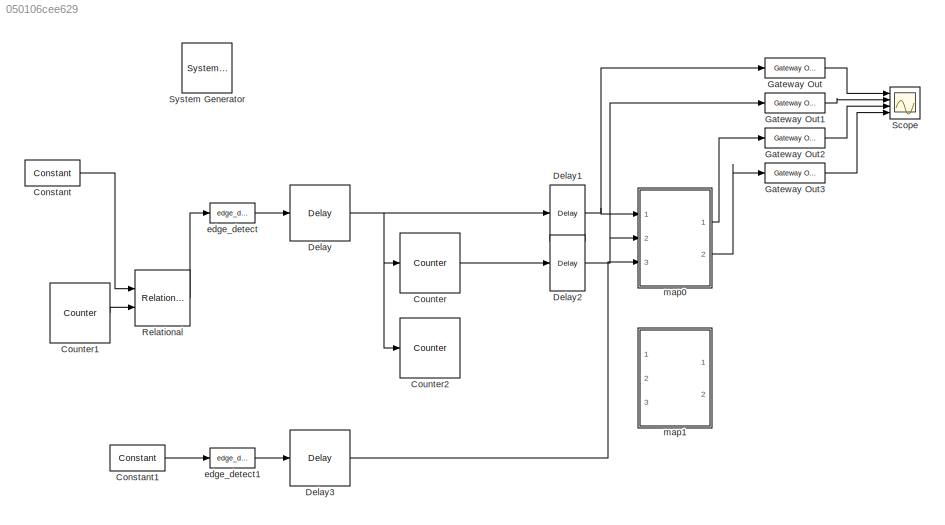
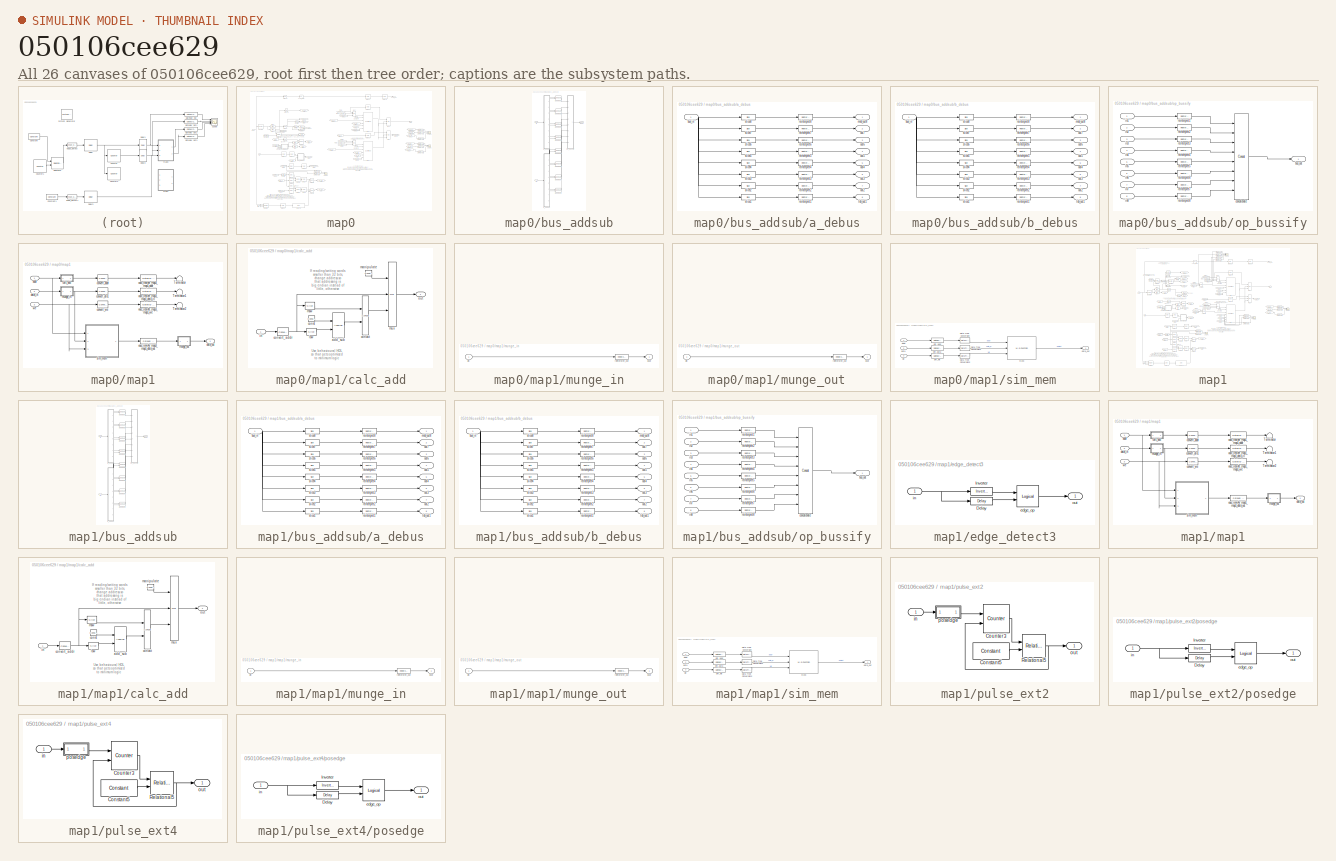
[diagram: thumbnail index - all 26 canvases of the model, root first then tree order]
MODEL slx_050106cee629
KIND model
CONFIG AbsTol = auto
CONFIG EnableMultiTasking = off
CONFIG FixedStep = auto
CONFIG MaxStep = auto
CONFIG MinStep = auto
CONFIG RelTol = 1e-3
CONFIG SampleTimeConstraint = Unconstrained
CONFIG SolverName = VariableStepAuto
CONFIG StartTime = 0.0
CONFIG StopTime = 32*4*4+50
BLOCK [Reference]  System Generator  REF=xbsIndex_r4/ System Generator
  AttributesFormatString = System\nGenerator
  Ports = []
  SourceBlock = xbsIndex_r4/ System Generator
  SourceType = Xilinx System Generator Block
  Tag = genX
  UserDataPersistent = on
BLOCK [Reference] Constant  REF=xbsIndex_r4/Constant
  Ports = [0, 1]
  SourceBlock = xbsIndex_r4/Constant
  SourceType = Xilinx Constant Block Block
BLOCK [Reference] Constant1  REF=xbsIndex_r4/Constant
  Ports = [0, 1]
  SourceBlock = xbsIndex_r4/Constant
  SourceType = Xilinx Constant Block Block
BLOCK [Reference] Counter  REF=xbsIndex_r4/Counter
  Ports = [1, 1]
  SourceBlock = xbsIndex_r4/Counter
  SourceType = Xilinx Counter Block
BLOCK [Reference] Counter1  REF=xbsIndex_r4/Counter
  Ports = [0, 1]
  SourceBlock = xbsIndex_r4/Counter
  SourceType = Xilinx Counter Block
BLOCK [Reference] Counter2  REF=xbsIndex_r4/Counter
  Ports = [1, 1]
  SourceBlock = xbsIndex_r4/Counter
  SourceType = Xilinx Counter Block
BLOCK [Reference] Delay  REF=xbsIndex_r4/Delay
  Ports = [1, 1]
  SourceBlock = xbsIndex_r4/Delay
  SourceType = Xilinx Delay Block
BLOCK [Reference] Delay1  REF=xbsIndex_r4/Delay
  Ports = [1, 1]
  SourceBlock = xbsIndex_r4/Delay
  SourceType = Xilinx Delay Block
BLOCK [Reference] Delay2  REF=xbsIndex_r4/Delay
  Ports = [1, 1]
  SourceBlock = xbsIndex_r4/Delay
  SourceType = Xilinx Delay Block
BLOCK [Reference] Delay3  REF=xbsIndex_r4/Delay
  Ports = [1, 1]
  SourceBlock = xbsIndex_r4/Delay
  SourceType = Xilinx Delay Block
BLOCK [Reference] Gateway Out  REF=xbsIndex_r4/Gateway Out
  Ports = [1, 1]
  SourceBlock = xbsIndex_r4/Gateway Out
  SourceType = Xilinx Gateway Out Block
BLOCK [Reference] Gateway Out1  REF=xbsIndex_r4/Gateway Out
  Ports = [1, 1]
  SourceBlock = xbsIndex_r4/Gateway Out
  SourceType = Xilinx Gateway Out Block
BLOCK [Reference] Gateway Out2  REF=xbsIndex_r4/Gateway Out
  Ports = [1, 1]
  SourceBlock = xbsIndex_r4/Gateway Out
  SourceType = Xilinx Gateway Out Block
BLOCK [Reference] Gateway Out3  REF=xbsIndex_r4/Gateway Out
  Ports = [1, 1]
  SourceBlock = xbsIndex_r4/Gateway Out
  SourceType = Xilinx Gateway Out Block
BLOCK [Reference] Relational  REF=xbsIndex_r4/Relational
  Ports = [2, 1]
  SourceBlock = xbsIndex_r4/Relational
  SourceType = Xilinx Arithmetic Relational Operator Block
BLOCK [Scope] Scope
  Floating = off
  NumInputPorts = 4
  Ports = [4]
  ScopeSpecificationString = Simulink.scopes.TimeScopeBlockCfg('CurrentConfiguration', extmgr.ConfigurationSet(extmgr.Configuration('Core','General UI',true),extmgr.Configuration('Core','Source UI',true),extmgr.Configuration('Sources','WiredSimulink',true),extmgr.Configuration('Visuals','Time Domain',true,'SerializedDisplays',{struct('MinYLimReal','-0.125','MaxYLimReal','1.125','YLabelReal','','MinYLimMag','0.00000','MaxYLimM...<+3486ch>
BLOCK [Reference] edge_detect  REF=casper_library_misc/edge_detect  (lib defined in mdl_357510c33b49, mdl_57b5f564ae26, +4 more)
  AttributesFormatString = rising edges\nactive high
  Ports = [1, 1]
  SourceBlock = casper_library_misc/edge_detect
  SourceProductName = CASPER DSP Blockset
  SourceType = edge_detect
  UserDataPersistent = on
BLOCK [Reference] edge_detect1  REF=casper_library_misc/edge_detect  (lib defined in mdl_357510c33b49, mdl_57b5f564ae26, +4 more)
  AttributesFormatString = rising edges\nactive high
  Ports = [1, 1]
  SourceBlock = casper_library_misc/edge_detect
  SourceProductName = CASPER DSP Blockset
  SourceType = edge_detect
  UserDataPersistent = on
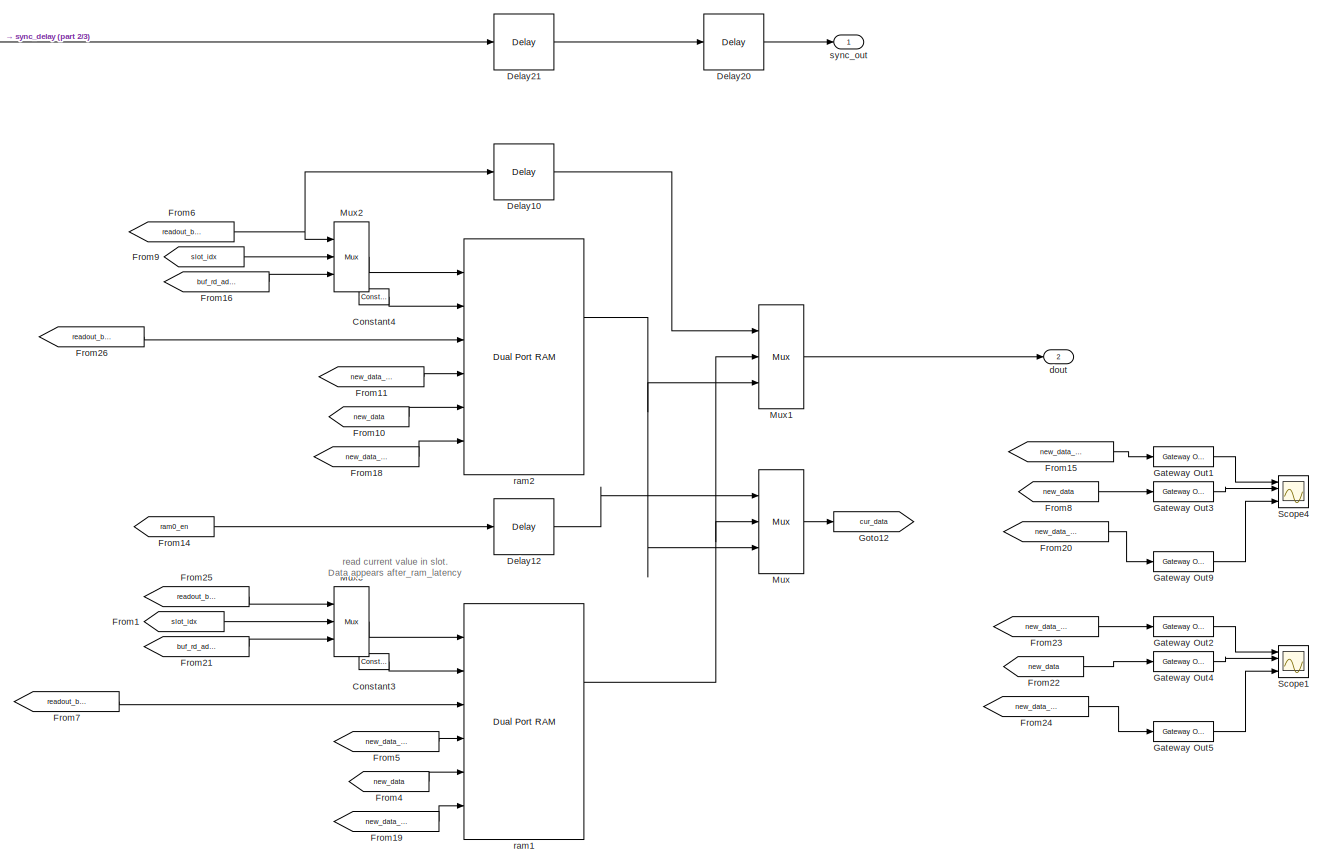
[diagram: map0 - part 1/3, top right region]
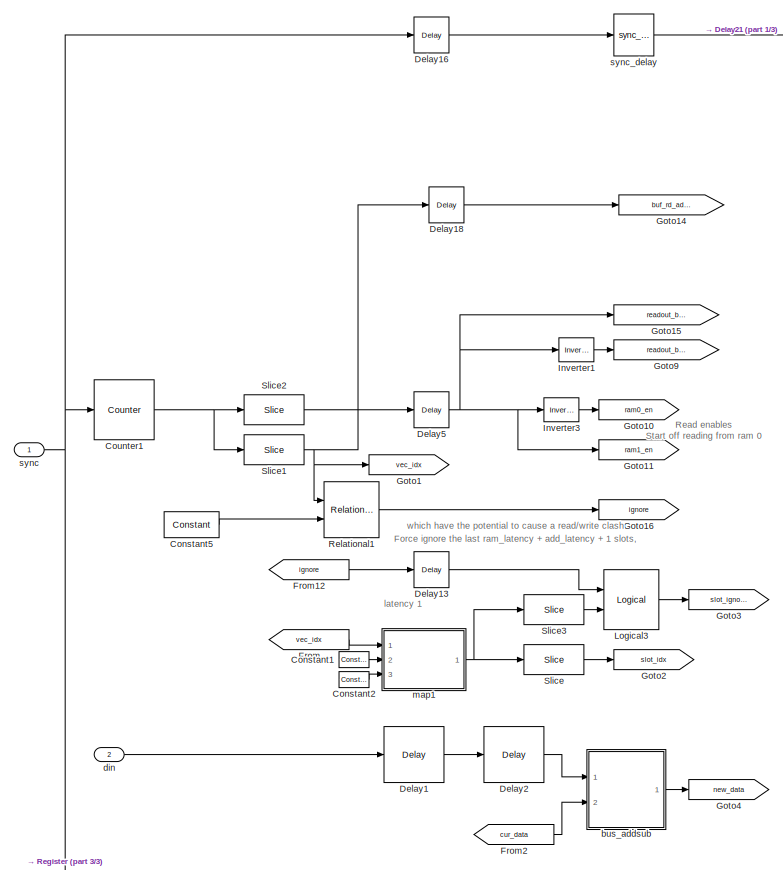
[diagram: map0 - part 2/3, top left region]
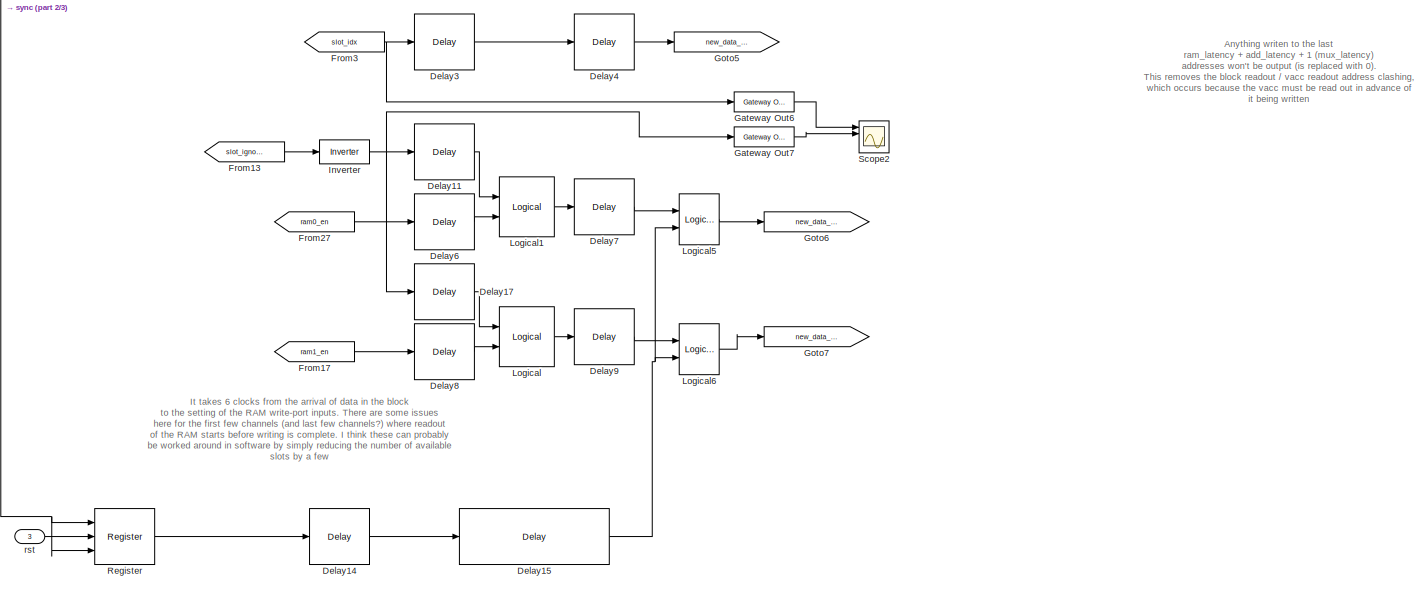
[diagram: map0 - part 3/3, bottom center region]
BLOCK [SubSystem] map0
  Ports = [3, 2]
  RequestExecContextInheritance = off
BLOCK [Reference] map0/Constant1  REF=xbsIndex_r4/Constant
  Ports = [0, 1]
  SourceBlock = xbsIndex_r4/Constant
  SourceType = Xilinx Constant Block Block
BLOCK [Reference] map0/Constant2  REF=xbsIndex_r4/Constant
  Ports = [0, 1]
  SourceBlock = xbsIndex_r4/Constant
  SourceType = Xilinx Constant Block Block
BLOCK [Reference] map0/Constant3  REF=xbsIndex_r4/Constant
  Ports = [0, 1]
  SourceBlock = xbsIndex_r4/Constant
  SourceType = Xilinx Constant Block Block
BLOCK [Reference] map0/Constant4  REF=xbsIndex_r4/Constant
  Ports = [0, 1]
  SourceBlock = xbsIndex_r4/Constant
  SourceType = Xilinx Constant Block Block
BLOCK [Reference] map0/Constant5  REF=xbsIndex_r4/Constant
  Ports = [0, 1]
  SourceBlock = xbsIndex_r4/Constant
  SourceType = Xilinx Constant Block Block
BLOCK [Reference] map0/Counter1  REF=xbsIndex_r4/Counter
  Ports = [1, 1]
  SourceBlock = xbsIndex_r4/Counter
  SourceType = Xilinx Counter Block
BLOCK [Reference] map0/Delay1  REF=xbsIndex_r4/Delay
  Ports = [1, 1]
  SourceBlock = xbsIndex_r4/Delay
  SourceType = Xilinx Delay Block
BLOCK [Reference] map0/Delay10  REF=xbsIndex_r4/Delay
  Ports = [1, 1]
  SourceBlock = xbsIndex_r4/Delay
  SourceType = Xilinx Delay Block
BLOCK [Reference] map0/Delay11  REF=xbsIndex_r4/Delay
  Ports = [1, 1]
  SourceBlock = xbsIndex_r4/Delay
  SourceType = Xilinx Delay Block
BLOCK [Reference] map0/Delay12  REF=xbsIndex_r4/Delay
  Ports = [1, 1]
  SourceBlock = xbsIndex_r4/Delay
  SourceType = Xilinx Delay Block
BLOCK [Reference] map0/Delay13  REF=xbsIndex_r4/Delay
  Ports = [1, 1]
  SourceBlock = xbsIndex_r4/Delay
  SourceType = Xilinx Delay Block
BLOCK [Reference] map0/Delay14  REF=xbsIndex_r4/Delay
  Ports = [1, 1]
  SourceBlock = xbsIndex_r4/Delay
  SourceType = Xilinx Delay Block
BLOCK [Reference] map0/Delay15  REF=xbsIndex_r4/Delay
  Ports = [1, 1]
  SourceBlock = xbsIndex_r4/Delay
  SourceType = Xilinx Delay Block
BLOCK [Reference] map0/Delay16  REF=xbsIndex_r4/Delay
  Ports = [1, 1]
  SourceBlock = xbsIndex_r4/Delay
  SourceType = Xilinx Delay Block
BLOCK [Reference] map0/Delay17  REF=xbsIndex_r4/Delay
  Ports = [1, 1]
  SourceBlock = xbsIndex_r4/Delay
  SourceType = Xilinx Delay Block
BLOCK [Reference] map0/Delay18  REF=xbsIndex_r4/Delay
  Ports = [1, 1]
  SourceBlock = xbsIndex_r4/Delay
  SourceType = Xilinx Delay Block
BLOCK [Reference] map0/Delay2  REF=xbsIndex_r4/Delay
  Ports = [1, 1]
  SourceBlock = xbsIndex_r4/Delay
  SourceType = Xilinx Delay Block
BLOCK [Reference] map0/Delay20  REF=xbsIndex_r4/Delay
  Ports = [1, 1]
  SourceBlock = xbsIndex_r4/Delay
  SourceType = Xilinx Delay Block
BLOCK [Reference] map0/Delay21  REF=xbsIndex_r4/Delay
  Ports = [1, 1]
  SourceBlock = xbsIndex_r4/Delay
  SourceType = Xilinx Delay Block
BLOCK [Reference] map0/Delay3  REF=xbsIndex_r4/Delay
  Ports = [1, 1]
  SourceBlock = xbsIndex_r4/Delay
  SourceType = Xilinx Delay Block
BLOCK [Reference] map0/Delay4  REF=xbsIndex_r4/Delay
  Ports = [1, 1]
  SourceBlock = xbsIndex_r4/Delay
  SourceType = Xilinx Delay Block
BLOCK [Reference] map0/Delay5  REF=xbsIndex_r4/Delay
  Ports = [1, 1]
  SourceBlock = xbsIndex_r4/Delay
  SourceType = Xilinx Delay Block
BLOCK [Reference] map0/Delay6  REF=xbsIndex_r4/Delay
  Ports = [1, 1]
  SourceBlock = xbsIndex_r4/Delay
  SourceType = Xilinx Delay Block
BLOCK [Reference] map0/Delay7  REF=xbsIndex_r4/Delay
  Ports = [1, 1]
  SourceBlock = xbsIndex_r4/Delay
  SourceType = Xilinx Delay Block
BLOCK [Reference] map0/Delay8  REF=xbsIndex_r4/Delay
  Ports = [1, 1]
  SourceBlock = xbsIndex_r4/Delay
  SourceType = Xilinx Delay Block
BLOCK [Reference] map0/Delay9  REF=xbsIndex_r4/Delay
  Ports = [1, 1]
  SourceBlock = xbsIndex_r4/Delay
  SourceType = Xilinx Delay Block
BLOCK [From] map0/From
  GotoTag = vec_idx
BLOCK [From] map0/From1
  GotoTag = slot_idx
BLOCK [From] map0/From10
  GotoTag = new_data
BLOCK [From] map0/From11
  GotoTag = new_data_addr
BLOCK [From] map0/From12
  GotoTag = ignore
BLOCK [From] map0/From13
  GotoTag = slot_ignore
BLOCK [From] map0/From14
  GotoTag = ram0_en
BLOCK [From] map0/From15
  Commented = on
  GotoTag = new_data_addr
BLOCK [From] map0/From16
  GotoTag = buf_rd_addr
BLOCK [From] map0/From17
  GotoTag = ram1_en
BLOCK [From] map0/From18
  GotoTag = new_data_we0
BLOCK [From] map0/From19
  GotoTag = new_data_we1
BLOCK [From] map0/From2
  GotoTag = cur_data
BLOCK [From] map0/From20
  Commented = on
  GotoTag = new_data_we0
BLOCK [From] map0/From21
  GotoTag = buf_rd_addr
BLOCK [From] map0/From22
  Commented = on
  GotoTag = new_data
BLOCK [From] map0/From23
  Commented = on
  GotoTag = new_data_addr
BLOCK [From] map0/From24
  Commented = on
  GotoTag = new_data_we1
BLOCK [From] map0/From25
  GotoTag = readout_buf1
BLOCK [From] map0/From26
  GotoTag = readout_buf0
BLOCK [From] map0/From27
  GotoTag = ram0_en
BLOCK [From] map0/From3
  GotoTag = slot_idx
BLOCK [From] map0/From4
  GotoTag = new_data
BLOCK [From] map0/From5
  GotoTag = new_data_addr
BLOCK [From] map0/From6
  GotoTag = readout_buf0
BLOCK [From] map0/From7
  GotoTag = readout_buf1
BLOCK [From] map0/From8
  Commented = on
  GotoTag = new_data
BLOCK [From] map0/From9
  GotoTag = slot_idx
BLOCK [Reference] map0/Gateway Out1  REF=xbsIndex_r4/Gateway Out
  Commented = on
  Ports = [1, 1]
  SourceBlock = xbsIndex_r4/Gateway Out
  SourceType = Xilinx Gateway Out Block
BLOCK [Reference] map0/Gateway Out2  REF=xbsIndex_r4/Gateway Out
  Commented = on
  Ports = [1, 1]
  SourceBlock = xbsIndex_r4/Gateway Out
  SourceType = Xilinx Gateway Out Block
BLOCK [Reference] map0/Gateway Out3  REF=xbsIndex_r4/Gateway Out
  Commented = on
  Ports = [1, 1]
  SourceBlock = xbsIndex_r4/Gateway Out
  SourceType = Xilinx Gateway Out Block
BLOCK [Reference] map0/Gateway Out4  REF=xbsIndex_r4/Gateway Out
  Commented = on
  Ports = [1, 1]
  SourceBlock = xbsIndex_r4/Gateway Out
  SourceType = Xilinx Gateway Out Block
BLOCK [Reference] map0/Gateway Out5  REF=xbsIndex_r4/Gateway Out
  Commented = on
  Ports = [1, 1]
  SourceBlock = xbsIndex_r4/Gateway Out
  SourceType = Xilinx Gateway Out Block
BLOCK [Reference] map0/Gateway Out6  REF=xbsIndex_r4/Gateway Out
  Ports = [1, 1]
  SourceBlock = xbsIndex_r4/Gateway Out
  SourceType = Xilinx Gateway Out Block
BLOCK [Reference] map0/Gateway Out7  REF=xbsIndex_r4/Gateway Out
  Ports = [1, 1]
  SourceBlock = xbsIndex_r4/Gateway Out
  SourceType = Xilinx Gateway Out Block
BLOCK [Reference] map0/Gateway Out9  REF=xbsIndex_r4/Gateway Out
  Commented = on
  Ports = [1, 1]
  SourceBlock = xbsIndex_r4/Gateway Out
  SourceType = Xilinx Gateway Out Block
BLOCK [Goto] map0/Goto1
  GotoTag = vec_idx
BLOCK [Goto] map0/Goto10
  GotoTag = ram0_en
BLOCK [Goto] map0/Goto11
  GotoTag = ram1_en
BLOCK [Goto] map0/Goto12
  GotoTag = cur_data
BLOCK [Goto] map0/Goto14
  GotoTag = buf_rd_addr
BLOCK [Goto] map0/Goto15
  GotoTag = readout_buf0
BLOCK [Goto] map0/Goto16
  GotoTag = ignore
BLOCK [Goto] map0/Goto2
  GotoTag = slot_idx
BLOCK [Goto] map0/Goto3
  GotoTag = slot_ignore
BLOCK [Goto] map0/Goto4
  GotoTag = new_data
BLOCK [Goto] map0/Goto5
  GotoTag = new_data_addr
BLOCK [Goto] map0/Goto6
  GotoTag = new_data_we0
BLOCK [Goto] map0/Goto7
  GotoTag = new_data_we1
BLOCK [Goto] map0/Goto9
  GotoTag = readout_buf1
BLOCK [Reference] map0/Inverter  REF=xbsIndex_r4/Inverter
  Ports = [1, 1]
  SourceBlock = xbsIndex_r4/Inverter
  SourceType = Xilinx Inverter Block
BLOCK [Reference] map0/Inverter1  REF=xbsIndex_r4/Inverter
  Ports = [1, 1]
  SourceBlock = xbsIndex_r4/Inverter
  SourceType = Xilinx Inverter Block
BLOCK [Reference] map0/Inverter3  REF=xbsIndex_r4/Inverter
  Ports = [1, 1]
  SourceBlock = xbsIndex_r4/Inverter
  SourceType = Xilinx Inverter Block
BLOCK [Reference] map0/Logical  REF=xbsIndex_r4/Logical
  Ports = [2, 1]
  SourceBlock = xbsIndex_r4/Logical
  SourceType = Xilinx Logical Block Block
BLOCK [Reference] map0/Logical1  REF=xbsIndex_r4/Logical
  Ports = [2, 1]
  SourceBlock = xbsIndex_r4/Logical
  SourceType = Xilinx Logical Block Block
BLOCK [Reference] map0/Logical3  REF=xbsIndex_r4/Logical
  Ports = [2, 1]
  SourceBlock = xbsIndex_r4/Logical
  SourceType = Xilinx Logical Block Block
BLOCK [Reference] map0/Logical5  REF=xbsIndex_r4/Logical
  Ports = [2, 1]
  SourceBlock = xbsIndex_r4/Logical
  SourceType = Xilinx Logical Block Block
BLOCK [Reference] map0/Logical6  REF=xbsIndex_r4/Logical
  Ports = [2, 1]
  SourceBlock = xbsIndex_r4/Logical
  SourceType = Xilinx Logical Block Block
BLOCK [Reference] map0/Mux  REF=xbsIndex_r4/Mux
  Ports = [3, 1]
  SourceBlock = xbsIndex_r4/Mux
  SourceType = Xilinx Bus Multiplexer Block
BLOCK [Reference] map0/Mux1  REF=xbsIndex_r4/Mux
  Ports = [3, 1]
  SourceBlock = xbsIndex_r4/Mux
  SourceType = Xilinx Bus Multiplexer Block
BLOCK [Reference] map0/Mux2  REF=xbsIndex_r4/Mux
  Ports = [3, 1]
  SourceBlock = xbsIndex_r4/Mux
  SourceType = Xilinx Bus Multiplexer Block
BLOCK [Reference] map0/Mux3  REF=xbsIndex_r4/Mux
  Ports = [3, 1]
  SourceBlock = xbsIndex_r4/Mux
  SourceType = Xilinx Bus Multiplexer Block
BLOCK [Reference] map0/Register  REF=xbsIndex_r4/Register
  Ports = [3, 1]
  SourceBlock = xbsIndex_r4/Register
  SourceType = Xilinx Register Block
BLOCK [Reference] map0/Relational1  REF=xbsIndex_r4/Relational
  Ports = [2, 1]
  SourceBlock = xbsIndex_r4/Relational
  SourceType = Xilinx Arithmetic Relational Operator Block
BLOCK [Scope] map0/Scope1
  Commented = on
  Floating = off
  NumInputPorts = 4
  Ports = [4]
  ScopeSpecificationString = Simulink.scopes.TimeScopeBlockCfg('CurrentConfiguration', extmgr.ConfigurationSet(extmgr.Configuration('Core','General UI',true),extmgr.Configuration('Core','Source UI',true),extmgr.Configuration('Sources','WiredSimulink',true,'DataLoggingVariableName','ScopeData2'),extmgr.Configuration('Visuals','Time Domain',true,'SerializedDisplays',{struct('MinYLimReal','-3.875','MaxYLimReal','34.875','YLabelR...<+3525ch>
BLOCK [Scope] map0/Scope2
  Floating = off
  NumInputPorts = 4
  Ports = [4]
  ScopeSpecificationString = Simulink.scopes.TimeScopeBlockCfg('CurrentConfiguration', extmgr.ConfigurationSet(extmgr.Configuration('Core','General UI',true),extmgr.Configuration('Core','Source UI',true),extmgr.Configuration('Sources','WiredSimulink',true,'DataLoggingVariableName','ScopeData3'),extmgr.Configuration('Visuals','Time Domain',true,'SerializedDisplays',{struct('MinYLimReal','-3.875','MaxYLimReal','34.875','YLabelR...<+3524ch>
BLOCK [Scope] map0/Scope4
  Commented = on
  Floating = off
  NumInputPorts = 4
  Ports = [4]
  ScopeSpecificationString = Simulink.scopes.TimeScopeBlockCfg('CurrentConfiguration', extmgr.ConfigurationSet(extmgr.Configuration('Core','General UI',true),extmgr.Configuration('Core','Source UI',true),extmgr.Configuration('Sources','WiredSimulink',true,'DataLoggingVariableName','ScopeData5'),extmgr.Configuration('Visuals','Time Domain',true,'SerializedDisplays',{struct('MinYLimReal','-3.875','MaxYLimReal','34.875','YLabelR...<+3524ch>
BLOCK [Reference] map0/Slice  REF=xbsIndex_r4/Slice
  Ports = [1, 1]
  SourceBlock = xbsIndex_r4/Slice
  SourceType = Xilinx Bit Slice Extractor Block
BLOCK [Reference] map0/Slice1  REF=xbsIndex_r4/Slice
  Ports = [1, 1]
  SourceBlock = xbsIndex_r4/Slice
  SourceType = Xilinx Bit Slice Extractor Block
BLOCK [Reference] map0/Slice2  REF=xbsIndex_r4/Slice
  Ports = [1, 1]
  SourceBlock = xbsIndex_r4/Slice
  SourceType = Xilinx Bit Slice Extractor Block
BLOCK [Reference] map0/Slice3  REF=xbsIndex_r4/Slice
  Ports = [1, 1]
  SourceBlock = xbsIndex_r4/Slice
  SourceType = Xilinx Bit Slice Extractor Block
BLOCK [SubSystem] map0/bus_addsub
  AncestorBlock = casper_library_bus/bus_addsub
  Ports = [2, 1]
  RequestExecContextInheritance = off
  UserDataPersistent = on
BLOCK [Inport] map0/bus_addsub/a
BLOCK [SubSystem] map0/bus_addsub/a_debus
  AncestorBlock = casper_library_flow_control/bus_expand
  AttributesFormatString = 8 outputs: f18.0,f18.0,f18.0,f18.0,f18.0,f18.0,f18.0,f18.0,
  Ports = [1, 8]
  RequestExecContextInheritance = off
  UserDataPersistent = on
BLOCK [Inport] map0/bus_addsub/a_debus/bus_in
BLOCK [Outport] map0/bus_addsub/a_debus/lsb_out1
  Port = 8
  VectorParamsAs1DForOutWhenUnconnected = off
BLOCK [Outport] map0/bus_addsub/a_debus/msb_out8
BLOCK [Outport] map0/bus_addsub/a_debus/out2
  Port = 7
BLOCK [Outport] map0/bus_addsub/a_debus/out3
  Port = 6
BLOCK [Outport] map0/bus_addsub/a_debus/out4
  Port = 5
BLOCK [Outport] map0/bus_addsub/a_debus/out5
  Port = 4
BLOCK [Outport] map0/bus_addsub/a_debus/out6
  Port = 3
BLOCK [Outport] map0/bus_addsub/a_debus/out7
  Port = 2
BLOCK [Reference] map0/bus_addsub/a_debus/reinterpret1  REF=xbsIndex_r4/Reinterpret
  Ports = [1, 1]
  SourceBlock = xbsIndex_r4/Reinterpret
  SourceType = Xilinx Type Reinterpreter Block
BLOCK [Reference] map0/bus_addsub/a_debus/reinterpret2  REF=xbsIndex_r4/Reinterpret
  Ports = [1, 1]
  SourceBlock = xbsIndex_r4/Reinterpret
  SourceType = Xilinx Type Reinterpreter Block
BLOCK [Reference] map0/bus_addsub/a_debus/reinterpret3  REF=xbsIndex_r4/Reinterpret
  Ports = [1, 1]
  SourceBlock = xbsIndex_r4/Reinterpret
  SourceType = Xilinx Type Reinterpreter Block
BLOCK [Reference] map0/bus_addsub/a_debus/reinterpret4  REF=xbsIndex_r4/Reinterpret
  Ports = [1, 1]
  SourceBlock = xbsIndex_r4/Reinterpret
  SourceType = Xilinx Type Reinterpreter Block
BLOCK [Reference] map0/bus_addsub/a_debus/reinterpret5  REF=xbsIndex_r4/Reinterpret
  Ports = [1, 1]
  SourceBlock = xbsIndex_r4/Reinterpret
  SourceType = Xilinx Type Reinterpreter Block
BLOCK [Reference] map0/bus_addsub/a_debus/reinterpret6  REF=xbsIndex_r4/Reinterpret
  Ports = [1, 1]
  SourceBlock = xbsIndex_r4/Reinterpret
  SourceType = Xilinx Type Reinterpreter Block
BLOCK [Reference] map0/bus_addsub/a_debus/reinterpret7  REF=xbsIndex_r4/Reinterpret
  Ports = [1, 1]
  SourceBlock = xbsIndex_r4/Reinterpret
  SourceType = Xilinx Type Reinterpreter Block
BLOCK [Reference] map0/bus_addsub/a_debus/reinterpret8  REF=xbsIndex_r4/Reinterpret
  Ports = [1, 1]
  SourceBlock = xbsIndex_r4/Reinterpret
  SourceType = Xilinx Type Reinterpreter Block
BLOCK [Reference] map0/bus_addsub/a_debus/slice1  REF=xbsIndex_r4/Slice
  Ports = [1, 1]
  SourceBlock = xbsIndex_r4/Slice
  SourceType = Xilinx Bit Slice Extractor Block
BLOCK [Reference] map0/bus_addsub/a_debus/slice2  REF=xbsIndex_r4/Slice
  Ports = [1, 1]
  SourceBlock = xbsIndex_r4/Slice
  SourceType = Xilinx Bit Slice Extractor Block
BLOCK [Reference] map0/bus_addsub/a_debus/slice3  REF=xbsIndex_r4/Slice
  Ports = [1, 1]
  SourceBlock = xbsIndex_r4/Slice
  SourceType = Xilinx Bit Slice Extractor Block
BLOCK [Reference] map0/bus_addsub/a_debus/slice4  REF=xbsIndex_r4/Slice
  Ports = [1, 1]
  SourceBlock = xbsIndex_r4/Slice
  SourceType = Xilinx Bit Slice Extractor Block
BLOCK [Reference] map0/bus_addsub/a_debus/slice5  REF=xbsIndex_r4/Slice
  Ports = [1, 1]
  SourceBlock = xbsIndex_r4/Slice
  SourceType = Xilinx Bit Slice Extractor Block
BLOCK [Reference] map0/bus_addsub/a_debus/slice6  REF=xbsIndex_r4/Slice
  Ports = [1, 1]
  SourceBlock = xbsIndex_r4/Slice
  SourceType = Xilinx Bit Slice Extractor Block
BLOCK [Reference] map0/bus_addsub/a_debus/slice7  REF=xbsIndex_r4/Slice
  Ports = [1, 1]
  SourceBlock = xbsIndex_r4/Slice
  SourceType = Xilinx Bit Slice Extractor Block
BLOCK [Reference] map0/bus_addsub/a_debus/slice8  REF=xbsIndex_r4/Slice
  Ports = [1, 1]
  SourceBlock = xbsIndex_r4/Slice
  SourceType = Xilinx Bit Slice Extractor Block
BLOCK [Reference] map0/bus_addsub/addsub1  REF=xbsIndex_r4/AddSub
  Ports = [2, 1]
  SourceBlock = xbsIndex_r4/AddSub
  SourceType = Xilinx Adder/Subtracter Block
BLOCK [Reference] map0/bus_addsub/addsub2  REF=xbsIndex_r4/AddSub
  Ports = [2, 1]
  SourceBlock = xbsIndex_r4/AddSub
  SourceType = Xilinx Adder/Subtracter Block
BLOCK [Reference] map0/bus_addsub/addsub3  REF=xbsIndex_r4/AddSub
  Ports = [2, 1]
  SourceBlock = xbsIndex_r4/AddSub
  SourceType = Xilinx Adder/Subtracter Block
BLOCK [Reference] map0/bus_addsub/addsub4  REF=xbsIndex_r4/AddSub
  Ports = [2, 1]
  SourceBlock = xbsIndex_r4/AddSub
  SourceType = Xilinx Adder/Subtracter Block
BLOCK [Reference] map0/bus_addsub/addsub5  REF=xbsIndex_r4/AddSub
  Ports = [2, 1]
  SourceBlock = xbsIndex_r4/AddSub
  SourceType = Xilinx Adder/Subtracter Block
BLOCK [Reference] map0/bus_addsub/addsub6  REF=xbsIndex_r4/AddSub
  Ports = [2, 1]
  SourceBlock = xbsIndex_r4/AddSub
  SourceType = Xilinx Adder/Subtracter Block
BLOCK [Reference] map0/bus_addsub/addsub7  REF=xbsIndex_r4/AddSub
  Ports = [2, 1]
  SourceBlock = xbsIndex_r4/AddSub
  SourceType = Xilinx Adder/Subtracter Block
BLOCK [Reference] map0/bus_addsub/addsub8  REF=xbsIndex_r4/AddSub
  Ports = [2, 1]
  SourceBlock = xbsIndex_r4/AddSub
  SourceType = Xilinx Adder/Subtracter Block
BLOCK [Inport] map0/bus_addsub/b
  Port = 2
BLOCK [SubSystem] map0/bus_addsub/b_debus
  AncestorBlock = casper_library_flow_control/bus_expand
  AttributesFormatString = 8 outputs: f18.0,f18.0,f18.0,f18.0,f18.0,f18.0,f18.0,f18.0,
  Ports = [1, 8]
  RequestExecContextInheritance = off
  UserDataPersistent = on
BLOCK [Inport] map0/bus_addsub/b_debus/bus_in
BLOCK [Outport] map0/bus_addsub/b_debus/lsb_out1
  Port = 8
  VectorParamsAs1DForOutWhenUnconnected = off
BLOCK [Outport] map0/bus_addsub/b_debus/msb_out8
BLOCK [Outport] map0/bus_addsub/b_debus/out2
  Port = 7
BLOCK [Outport] map0/bus_addsub/b_debus/out3
  Port = 6
BLOCK [Outport] map0/bus_addsub/b_debus/out4
  Port = 5
BLOCK [Outport] map0/bus_addsub/b_debus/out5
  Port = 4
BLOCK [Outport] map0/bus_addsub/b_debus/out6
  Port = 3
BLOCK [Outport] map0/bus_addsub/b_debus/out7
  Port = 2
BLOCK [Reference] map0/bus_addsub/b_debus/reinterpret1  REF=xbsIndex_r4/Reinterpret
  Ports = [1, 1]
  SourceBlock = xbsIndex_r4/Reinterpret
  SourceType = Xilinx Type Reinterpreter Block
BLOCK [Reference] map0/bus_addsub/b_debus/reinterpret2  REF=xbsIndex_r4/Reinterpret
  Ports = [1, 1]
  SourceBlock = xbsIndex_r4/Reinterpret
  SourceType = Xilinx Type Reinterpreter Block
BLOCK [Reference] map0/bus_addsub/b_debus/reinterpret3  REF=xbsIndex_r4/Reinterpret
  Ports = [1, 1]
  SourceBlock = xbsIndex_r4/Reinterpret
  SourceType = Xilinx Type Reinterpreter Block
BLOCK [Reference] map0/bus_addsub/b_debus/reinterpret4  REF=xbsIndex_r4/Reinterpret
  Ports = [1, 1]
  SourceBlock = xbsIndex_r4/Reinterpret
  SourceType = Xilinx Type Reinterpreter Block
BLOCK [Reference] map0/bus_addsub/b_debus/reinterpret5  REF=xbsIndex_r4/Reinterpret
  Ports = [1, 1]
  SourceBlock = xbsIndex_r4/Reinterpret
  SourceType = Xilinx Type Reinterpreter Block
BLOCK [Reference] map0/bus_addsub/b_debus/reinterpret6  REF=xbsIndex_r4/Reinterpret
  Ports = [1, 1]
  SourceBlock = xbsIndex_r4/Reinterpret
  SourceType = Xilinx Type Reinterpreter Block
BLOCK [Reference] map0/bus_addsub/b_debus/reinterpret7  REF=xbsIndex_r4/Reinterpret
  Ports = [1, 1]
  SourceBlock = xbsIndex_r4/Reinterpret
  SourceType = Xilinx Type Reinterpreter Block
BLOCK [Reference] map0/bus_addsub/b_debus/reinterpret8  REF=xbsIndex_r4/Reinterpret
  Ports = [1, 1]
  SourceBlock = xbsIndex_r4/Reinterpret
  SourceType = Xilinx Type Reinterpreter Block
BLOCK [Reference] map0/bus_addsub/b_debus/slice1  REF=xbsIndex_r4/Slice
  Ports = [1, 1]
  SourceBlock = xbsIndex_r4/Slice
  SourceType = Xilinx Bit Slice Extractor Block
BLOCK [Reference] map0/bus_addsub/b_debus/slice2  REF=xbsIndex_r4/Slice
  Ports = [1, 1]
  SourceBlock = xbsIndex_r4/Slice
  SourceType = Xilinx Bit Slice Extractor Block
BLOCK [Reference] map0/bus_addsub/b_debus/slice3  REF=xbsIndex_r4/Slice
  Ports = [1, 1]
  SourceBlock = xbsIndex_r4/Slice
  SourceType = Xilinx Bit Slice Extractor Block
BLOCK [Reference] map0/bus_addsub/b_debus/slice4  REF=xbsIndex_r4/Slice
  Ports = [1, 1]
  SourceBlock = xbsIndex_r4/Slice
  SourceType = Xilinx Bit Slice Extractor Block
BLOCK [Reference] map0/bus_addsub/b_debus/slice5  REF=xbsIndex_r4/Slice
  Ports = [1, 1]
  SourceBlock = xbsIndex_r4/Slice
  SourceType = Xilinx Bit Slice Extractor Block
BLOCK [Reference] map0/bus_addsub/b_debus/slice6  REF=xbsIndex_r4/Slice
  Ports = [1, 1]
  SourceBlock = xbsIndex_r4/Slice
  SourceType = Xilinx Bit Slice Extractor Block
BLOCK [Reference] map0/bus_addsub/b_debus/slice7  REF=xbsIndex_r4/Slice
  Ports = [1, 1]
  SourceBlock = xbsIndex_r4/Slice
  SourceType = Xilinx Bit Slice Extractor Block
BLOCK [Reference] map0/bus_addsub/b_debus/slice8  REF=xbsIndex_r4/Slice
  Ports = [1, 1]
  SourceBlock = xbsIndex_r4/Slice
  SourceType = Xilinx Bit Slice Extractor Block
BLOCK [Outport] map0/bus_addsub/dout
BLOCK [SubSystem] map0/bus_addsub/op_bussify
  AncestorBlock = casper_library_flow_control/bus_create
  Ports = [8, 1]
  RequestExecContextInheritance = off
  UserDataPersistent = on
BLOCK [Outport] map0/bus_addsub/op_bussify/bus_out
  VectorParamsAs1DForOutWhenUnconnected = off
BLOCK [Reference] map0/bus_addsub/op_bussify/concatenate  REF=xbsIndex_r4/Concat
  Ports = [8, 1]
  SourceBlock = xbsIndex_r4/Concat
  SourceType = Xilinx Bus Concatenator Block
BLOCK [Inport] map0/bus_addsub/op_bussify/in1
BLOCK [Inport] map0/bus_addsub/op_bussify/in2
  Port = 2
BLOCK [Inport] map0/bus_addsub/op_bussify/in3
  Port = 3
BLOCK [Inport] map0/bus_addsub/op_bussify/in4
  Port = 4
BLOCK [Inport] map0/bus_addsub/op_bussify/in5
  Port = 5
BLOCK [Inport] map0/bus_addsub/op_bussify/in6
  Port = 6
BLOCK [Inport] map0/bus_addsub/op_bussify/in7
  Port = 7
BLOCK [Inport] map0/bus_addsub/op_bussify/in8
  Port = 8
BLOCK [Reference] map0/bus_addsub/op_bussify/reinterpret1  REF=xbsIndex_r4/Reinterpret
  Ports = [1, 1]
  SourceBlock = xbsIndex_r4/Reinterpret
  SourceType = Xilinx Type Reinterpreter Block
BLOCK [Reference] map0/bus_addsub/op_bussify/reinterpret2  REF=xbsIndex_r4/Reinterpret
  Ports = [1, 1]
  SourceBlock = xbsIndex_r4/Reinterpret
  SourceType = Xilinx Type Reinterpreter Block
BLOCK [Reference] map0/bus_addsub/op_bussify/reinterpret3  REF=xbsIndex_r4/Reinterpret
  Ports = [1, 1]
  SourceBlock = xbsIndex_r4/Reinterpret
  SourceType = Xilinx Type Reinterpreter Block
BLOCK [Reference] map0/bus_addsub/op_bussify/reinterpret4  REF=xbsIndex_r4/Reinterpret
  Ports = [1, 1]
  SourceBlock = xbsIndex_r4/Reinterpret
  SourceType = Xilinx Type Reinterpreter Block
BLOCK [Reference] map0/bus_addsub/op_bussify/reinterpret5  REF=xbsIndex_r4/Reinterpret
  Ports = [1, 1]
  SourceBlock = xbsIndex_r4/Reinterpret
  SourceType = Xilinx Type Reinterpreter Block
BLOCK [Reference] map0/bus_addsub/op_bussify/reinterpret6  REF=xbsIndex_r4/Reinterpret
  Ports = [1, 1]
  SourceBlock = xbsIndex_r4/Reinterpret
  SourceType = Xilinx Type Reinterpreter Block
BLOCK [Reference] map0/bus_addsub/op_bussify/reinterpret7  REF=xbsIndex_r4/Reinterpret
  Ports = [1, 1]
  SourceBlock = xbsIndex_r4/Reinterpret
  SourceType = Xilinx Type Reinterpreter Block
BLOCK [Reference] map0/bus_addsub/op_bussify/reinterpret8  REF=xbsIndex_r4/Reinterpret
  Ports = [1, 1]
  SourceBlock = xbsIndex_r4/Reinterpret
  SourceType = Xilinx Type Reinterpreter Block
BLOCK [Inport] map0/din
  Port = 2
BLOCK [Outport] map0/dout
  Port = 2
BLOCK [SubSystem] map0/map1
  AncestorBlock = xps_library/Memory/shared_bram
  Ports = [3, 1]
  RequestExecContextInheritance = off
  Tag = xps:bram
BLOCK [Terminator] map0/map1/Terminator
BLOCK [Terminator] map0/map1/Terminator1
BLOCK [Terminator] map0/map1/Terminator2
BLOCK [Inport] map0/map1/addr
BLOCK [SubSystem] map0/map1/calc_add
  Ports = [1, 1]
  RequestExecContextInheritance = off
BLOCK [Reference] map0/map1/calc_add/add_sub  REF=xbsIndex_r4/AddSub
  Ports = [2, 1]
  SourceBlock = xbsIndex_r4/AddSub
  SourceType = Xilinx Adder/Subtracter Block
BLOCK [Reference] map0/map1/calc_add/concat  REF=xbsIndex_r4/Concat
  Ports = [2, 1]
  SourceBlock = xbsIndex_r4/Concat
  SourceType = Xilinx Bus Concatenator Block
BLOCK [Reference] map0/map1/calc_add/const  REF=xbsIndex_r4/Constant
  Ports = [0, 1]
  SourceBlock = xbsIndex_r4/Constant
  SourceType = Xilinx Constant Block Block
BLOCK [Reference] map0/map1/calc_add/convert_addr  REF=xbsIndex_r4/Convert
  Ports = [1, 1]
  SourceBlock = xbsIndex_r4/Convert
  SourceType = Xilinx Type Converter Block
BLOCK [Inport] map0/map1/calc_add/in
BLOCK [Reference] map0/map1/calc_add/lsw  REF=xbsIndex_r4/Slice
  Ports = [1, 1]
  SourceBlock = xbsIndex_r4/Slice
  SourceType = Xilinx Bit Slice Extractor Block
BLOCK [Reference] map0/map1/calc_add/manipulate  REF=xbsIndex_r4/Constant
  Ports = [0, 1]
  SourceBlock = xbsIndex_r4/Constant
  SourceType = Xilinx Constant Block Block
BLOCK [Reference] map0/map1/calc_add/msw  REF=xbsIndex_r4/Slice
  Ports = [1, 1]
  SourceBlock = xbsIndex_r4/Slice
  SourceType = Xilinx Bit Slice Extractor Block
BLOCK [Reference] map0/map1/calc_add/mux  REF=xbsIndex_r4/Mux
  Ports = [3, 1]
  SourceBlock = xbsIndex_r4/Mux
  SourceType = Xilinx Bus Multiplexer Block
BLOCK [Outport] map0/map1/calc_add/out
  VectorParamsAs1DForOutWhenUnconnected = off
BLOCK [Reference] map0/map1/convert_addr  REF=xbsIndex_r4/Convert
  Ports = [1, 1]
  SourceBlock = xbsIndex_r4/Convert
  SourceType = Xilinx Type Converter Block
BLOCK [Reference] map0/map1/convert_din1  REF=xbsIndex_r4/Convert
  Ports = [1, 1]
  SourceBlock = xbsIndex_r4/Convert
  SourceType = Xilinx Type Converter Block
BLOCK [Reference] map0/map1/convert_we  REF=xbsIndex_r4/Convert
  Ports = [1, 1]
  SourceBlock = xbsIndex_r4/Convert
  SourceType = Xilinx Type Converter Block
BLOCK [Inport] map0/map1/data_in
  Port = 2
BLOCK [Outport] map0/map1/data_out
  VectorParamsAs1DForOutWhenUnconnected = off
BLOCK [SubSystem] map0/map1/munge_in
  AncestorBlock = casper_library_flow_control/munge
  AttributesFormatString = split:32\njoin:0\nUnsigned [32,0]
  Ports = [1, 1]
  RequestExecContextInheritance = off
  UserDataPersistent = on
BLOCK [Inport] map0/map1/munge_in/din
BLOCK [Outport] map0/map1/munge_in/dout
  VectorParamsAs1DForOutWhenUnconnected = off
BLOCK [Reference] map0/map1/munge_in/reinterpret_out  REF=xbsIndex_r4/Reinterpret
  Ports = [1, 1]
  SourceBlock = xbsIndex_r4/Reinterpret
  SourceType = Xilinx Type Reinterpreter Block
BLOCK [SubSystem] map0/map1/munge_out
  AncestorBlock = casper_library_flow_control/munge
  AttributesFormatString = split:32\njoin:0\nUnsigned [32,0]
  Ports = [1, 1]
  RequestExecContextInheritance = off
  UserDataPersistent = on
BLOCK [Inport] map0/map1/munge_out/din
BLOCK [Outport] map0/map1/munge_out/dout
  VectorParamsAs1DForOutWhenUnconnected = off
BLOCK [Reference] map0/map1/munge_out/reinterpret_out  REF=xbsIndex_r4/Reinterpret
  Ports = [1, 1]
  SourceBlock = xbsIndex_r4/Reinterpret
  SourceType = Xilinx Type Reinterpreter Block
BLOCK [SubSystem] map0/map1/sim_mem
  Ports = [3, 1]
  RequestExecContextInheritance = off
BLOCK [DataTypeConversion] map0/map1/sim_mem/Data Type Conversion
  OutDataTypeStr = single
  RndMeth = Floor
  SaturateOnIntegerOverflow = off
BLOCK [DataTypeConversion] map0/map1/sim_mem/Data Type Conversion1
  OutDataTypeStr = double
  RndMeth = Floor
  SaturateOnIntegerOverflow = off
BLOCK [DataTypeConversion] map0/map1/sim_mem/Data Type Conversion2
  OutDataTypeStr = boolean
  RndMeth = Floor
  SaturateOnIntegerOverflow = off
BLOCK [Inport] map0/map1/sim_mem/addr
BLOCK [Inport] map0/map1/sim_mem/data
  Port = 2
BLOCK [Outport] map0/map1/sim_mem/data_out
  VectorParamsAs1DForOutWhenUnconnected = off
BLOCK [M-S-Function] map0/map1/sim_mem/sfunc
  FunctionName = shared_bram_sim_sfunc
  Parameters = depth_bits, latency, init_vals
  Ports = [3, 1]
BLOCK [Reference] map0/map1/sim_mem/sim_addr  REF=xbsIndex_r4/Gateway Out
  Ports = [1, 1]
  SourceBlock = xbsIndex_r4/Gateway Out
  SourceType = Xilinx Gateway Out Block
BLOCK [Reference] map0/map1/sim_mem/sim_data  REF=xbsIndex_r4/Gateway Out
  Ports = [1, 1]
  SourceBlock = xbsIndex_r4/Gateway Out
  SourceType = Xilinx Gateway Out Block
BLOCK [Reference] map0/map1/sim_mem/sim_we  REF=xbsIndex_r4/Gateway Out
  Ports = [1, 1]
  SourceBlock = xbsIndex_r4/Gateway Out
  SourceType = Xilinx Gateway Out Block
BLOCK [Inport] map0/map1/sim_mem/we
  Port = 3
BLOCK [Reference] map0/map1/vacc_reorder_map3_map1_addr  REF=xbsIndex_r4/Gateway Out
  Ports = [1, 1]
  SourceBlock = xbsIndex_r4/Gateway Out
  SourceType = Xilinx Gateway Out Block
BLOCK [Reference] map0/map1/vacc_reorder_map3_map1_data_in  REF=xbsIndex_r4/Gateway Out
  Ports = [1, 1]
  SourceBlock = xbsIndex_r4/Gateway Out
  SourceType = Xilinx Gateway Out Block
BLOCK [Reference] map0/map1/vacc_reorder_map3_map1_data_out  REF=xbsIndex_r4/Gateway In
  Ports = [1, 1]
  SourceBlock = xbsIndex_r4/Gateway In
  SourceType = Xilinx Gateway In Block
BLOCK [Reference] map0/map1/vacc_reorder_map3_map1_we  REF=xbsIndex_r4/Gateway Out
  Ports = [1, 1]
  SourceBlock = xbsIndex_r4/Gateway Out
  SourceType = Xilinx Gateway Out Block
BLOCK [Inport] map0/map1/we
  Port = 3
BLOCK [Reference] map0/ram1  REF=xbsIndex_r4/Dual Port RAM
  Ports = [6, 2]
  SourceBlock = xbsIndex_r4/Dual Port RAM
  SourceType = Xilinx Dual Port Random Access Memory Block
BLOCK [Reference] map0/ram2  REF=xbsIndex_r4/Dual Port RAM
  Ports = [6, 2]
  SourceBlock = xbsIndex_r4/Dual Port RAM
  SourceType = Xilinx Dual Port Random Access Memory Block
BLOCK [Inport] map0/rst
  Port = 3
BLOCK [Inport] map0/sync
BLOCK [Reference] map0/sync_delay  REF=casper_library_delays/sync_delay  (lib defined in mdl_259a08a3fac5, mdl_65009615caaa, +5 more)
  Ports = [1, 1]
  SourceBlock = casper_library_delays/sync_delay
  SourceProductName = CASPER DSP Blockset
  SourceType = sync_delay
BLOCK [Outport] map0/sync_out
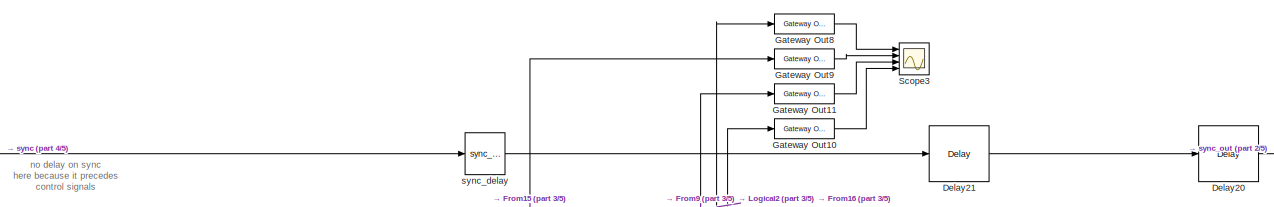
[diagram: map1 - part 1/5, top center region]
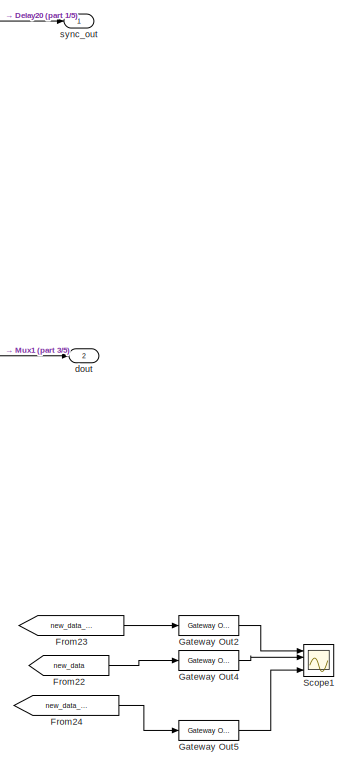
[diagram: map1 - part 2/5, middle right region]
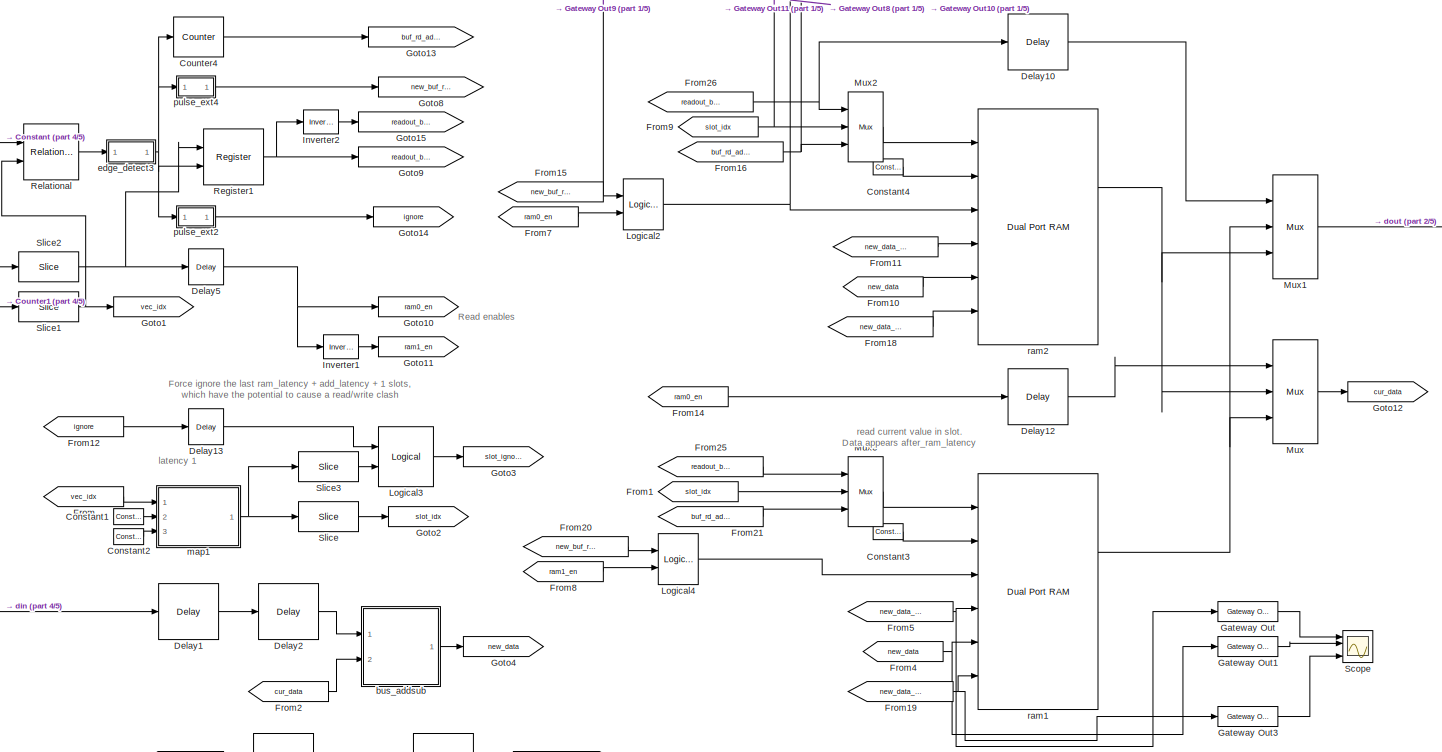
[diagram: map1 - part 3/5, central region]
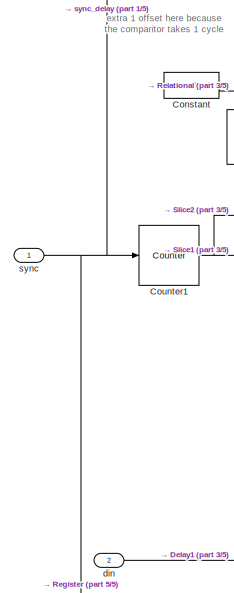
[diagram: map1 - part 4/5, middle left region]
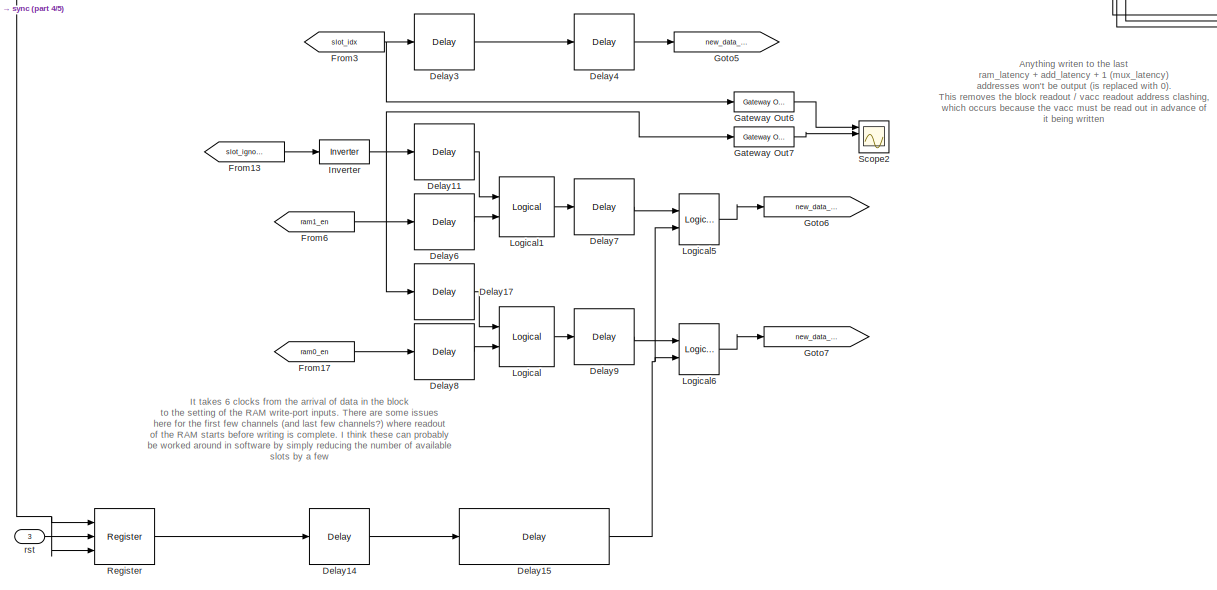
[diagram: map1 - part 5/5, bottom left region]
BLOCK [SubSystem] map1
  Commented = on
  Ports = [3, 2]
  RequestExecContextInheritance = off
BLOCK [Reference] map1/Constant  REF=xbsIndex_r4/Constant
  Ports = [0, 1]
  SourceBlock = xbsIndex_r4/Constant
  SourceType = Xilinx Constant Block Block
BLOCK [Reference] map1/Constant1  REF=xbsIndex_r4/Constant
  Ports = [0, 1]
  SourceBlock = xbsIndex_r4/Constant
  SourceType = Xilinx Constant Block Block
BLOCK [Reference] map1/Constant2  REF=xbsIndex_r4/Constant
  Ports = [0, 1]
  SourceBlock = xbsIndex_r4/Constant
  SourceType = Xilinx Constant Block Block
BLOCK [Reference] map1/Constant3  REF=xbsIndex_r4/Constant
  Ports = [0, 1]
  SourceBlock = xbsIndex_r4/Constant
  SourceType = Xilinx Constant Block Block
BLOCK [Reference] map1/Constant4  REF=xbsIndex_r4/Constant
  Ports = [0, 1]
  SourceBlock = xbsIndex_r4/Constant
  SourceType = Xilinx Constant Block Block
BLOCK [Reference] map1/Counter1  REF=xbsIndex_r4/Counter
  Ports = [1, 1]
  SourceBlock = xbsIndex_r4/Counter
  SourceType = Xilinx Counter Block
BLOCK [Reference] map1/Counter4  REF=xbsIndex_r4/Counter
  Ports = [1, 1]
  SourceBlock = xbsIndex_r4/Counter
  SourceType = Xilinx Counter Block
BLOCK [Reference] map1/Delay1  REF=xbsIndex_r4/Delay
  Ports = [1, 1]
  SourceBlock = xbsIndex_r4/Delay
  SourceType = Xilinx Delay Block
BLOCK [Reference] map1/Delay10  REF=xbsIndex_r4/Delay
  Ports = [1, 1]
  SourceBlock = xbsIndex_r4/Delay
  SourceType = Xilinx Delay Block
BLOCK [Reference] map1/Delay11  REF=xbsIndex_r4/Delay
  Ports = [1, 1]
  SourceBlock = xbsIndex_r4/Delay
  SourceType = Xilinx Delay Block
BLOCK [Reference] map1/Delay12  REF=xbsIndex_r4/Delay
  Ports = [1, 1]
  SourceBlock = xbsIndex_r4/Delay
  SourceType = Xilinx Delay Block
BLOCK [Reference] map1/Delay13  REF=xbsIndex_r4/Delay
  Ports = [1, 1]
  SourceBlock = xbsIndex_r4/Delay
  SourceType = Xilinx Delay Block
BLOCK [Reference] map1/Delay14  REF=xbsIndex_r4/Delay
  Ports = [1, 1]
  SourceBlock = xbsIndex_r4/Delay
  SourceType = Xilinx Delay Block
BLOCK [Reference] map1/Delay15  REF=xbsIndex_r4/Delay
  Ports = [1, 1]
  SourceBlock = xbsIndex_r4/Delay
  SourceType = Xilinx Delay Block
BLOCK [Reference] map1/Delay17  REF=xbsIndex_r4/Delay
  Ports = [1, 1]
  SourceBlock = xbsIndex_r4/Delay
  SourceType = Xilinx Delay Block
BLOCK [Reference] map1/Delay2  REF=xbsIndex_r4/Delay
  Ports = [1, 1]
  SourceBlock = xbsIndex_r4/Delay
  SourceType = Xilinx Delay Block
BLOCK [Reference] map1/Delay20  REF=xbsIndex_r4/Delay
  Ports = [1, 1]
  SourceBlock = xbsIndex_r4/Delay
  SourceType = Xilinx Delay Block
BLOCK [Reference] map1/Delay21  REF=xbsIndex_r4/Delay
  Ports = [1, 1]
  SourceBlock = xbsIndex_r4/Delay
  SourceType = Xilinx Delay Block
BLOCK [Reference] map1/Delay3  REF=xbsIndex_r4/Delay
  Ports = [1, 1]
  SourceBlock = xbsIndex_r4/Delay
  SourceType = Xilinx Delay Block
BLOCK [Reference] map1/Delay4  REF=xbsIndex_r4/Delay
  Ports = [1, 1]
  SourceBlock = xbsIndex_r4/Delay
  SourceType = Xilinx Delay Block
BLOCK [Reference] map1/Delay5  REF=xbsIndex_r4/Delay
  Ports = [1, 1]
  SourceBlock = xbsIndex_r4/Delay
  SourceType = Xilinx Delay Block
BLOCK [Reference] map1/Delay6  REF=xbsIndex_r4/Delay
  Ports = [1, 1]
  SourceBlock = xbsIndex_r4/Delay
  SourceType = Xilinx Delay Block
BLOCK [Reference] map1/Delay7  REF=xbsIndex_r4/Delay
  Ports = [1, 1]
  SourceBlock = xbsIndex_r4/Delay
  SourceType = Xilinx Delay Block
BLOCK [Reference] map1/Delay8  REF=xbsIndex_r4/Delay
  Ports = [1, 1]
  SourceBlock = xbsIndex_r4/Delay
  SourceType = Xilinx Delay Block
BLOCK [Reference] map1/Delay9  REF=xbsIndex_r4/Delay
  Ports = [1, 1]
  SourceBlock = xbsIndex_r4/Delay
  SourceType = Xilinx Delay Block
BLOCK [From] map1/From
  GotoTag = vec_idx
BLOCK [From] map1/From1
  GotoTag = slot_idx
BLOCK [From] map1/From10
  GotoTag = new_data
BLOCK [From] map1/From11
  GotoTag = new_data_addr
BLOCK [From] map1/From12
  GotoTag = ignore
BLOCK [From] map1/From13
  GotoTag = slot_ignore
BLOCK [From] map1/From14
  GotoTag = ram0_en
BLOCK [From] map1/From15
  GotoTag = new_buf_reading
BLOCK [From] map1/From16
  GotoTag = buf_rd_addr
BLOCK [From] map1/From17
  GotoTag = ram0_en
BLOCK [From] map1/From18
  GotoTag = new_data_we0
BLOCK [From] map1/From19
  GotoTag = new_data_we1
BLOCK [From] map1/From2
  GotoTag = cur_data
BLOCK [From] map1/From20
  GotoTag = new_buf_reading
BLOCK [From] map1/From21
  GotoTag = buf_rd_addr
BLOCK [From] map1/From22
  GotoTag = new_data
BLOCK [From] map1/From23
  GotoTag = new_data_addr
BLOCK [From] map1/From24
  GotoTag = new_data_we0
BLOCK [From] map1/From25
  GotoTag = readout_buf1
BLOCK [From] map1/From26
  GotoTag = readout_buf0
BLOCK [From] map1/From3
  GotoTag = slot_idx
BLOCK [From] map1/From4
  GotoTag = new_data
BLOCK [From] map1/From5
  GotoTag = new_data_addr
BLOCK [From] map1/From6
  GotoTag = ram1_en
BLOCK [From] map1/From7
  GotoTag = ram0_en
BLOCK [From] map1/From8
  GotoTag = ram1_en
BLOCK [From] map1/From9
  GotoTag = slot_idx
BLOCK [Reference] map1/Gateway Out  REF=xbsIndex_r4/Gateway Out
  Ports = [1, 1]
  SourceBlock = xbsIndex_r4/Gateway Out
  SourceType = Xilinx Gateway Out Block
BLOCK [Reference] map1/Gateway Out1  REF=xbsIndex_r4/Gateway Out
  Ports = [1, 1]
  SourceBlock = xbsIndex_r4/Gateway Out
  SourceType = Xilinx Gateway Out Block
BLOCK [Reference] map1/Gateway Out10  REF=xbsIndex_r4/Gateway Out
  Ports = [1, 1]
  SourceBlock = xbsIndex_r4/Gateway Out
  SourceType = Xilinx Gateway Out Block
BLOCK [Reference] map1/Gateway Out11  REF=xbsIndex_r4/Gateway Out
  Ports = [1, 1]
  SourceBlock = xbsIndex_r4/Gateway Out
  SourceType = Xilinx Gateway Out Block
BLOCK [Reference] map1/Gateway Out2  REF=xbsIndex_r4/Gateway Out
  Ports = [1, 1]
  SourceBlock = xbsIndex_r4/Gateway Out
  SourceType = Xilinx Gateway Out Block
BLOCK [Reference] map1/Gateway Out3  REF=xbsIndex_r4/Gateway Out
  Ports = [1, 1]
  SourceBlock = xbsIndex_r4/Gateway Out
  SourceType = Xilinx Gateway Out Block
BLOCK [Reference] map1/Gateway Out4  REF=xbsIndex_r4/Gateway Out
  Ports = [1, 1]
  SourceBlock = xbsIndex_r4/Gateway Out
  SourceType = Xilinx Gateway Out Block
BLOCK [Reference] map1/Gateway Out5  REF=xbsIndex_r4/Gateway Out
  Ports = [1, 1]
  SourceBlock = xbsIndex_r4/Gateway Out
  SourceType = Xilinx Gateway Out Block
BLOCK [Reference] map1/Gateway Out6  REF=xbsIndex_r4/Gateway Out
  Ports = [1, 1]
  SourceBlock = xbsIndex_r4/Gateway Out
  SourceType = Xilinx Gateway Out Block
BLOCK [Reference] map1/Gateway Out7  REF=xbsIndex_r4/Gateway Out
  Ports = [1, 1]
  SourceBlock = xbsIndex_r4/Gateway Out
  SourceType = Xilinx Gateway Out Block
BLOCK [Reference] map1/Gateway Out8  REF=xbsIndex_r4/Gateway Out
  Ports = [1, 1]
  SourceBlock = xbsIndex_r4/Gateway Out
  SourceType = Xilinx Gateway Out Block
BLOCK [Reference] map1/Gateway Out9  REF=xbsIndex_r4/Gateway Out
  Ports = [1, 1]
  SourceBlock = xbsIndex_r4/Gateway Out
  SourceType = Xilinx Gateway Out Block
BLOCK [Goto] map1/Goto1
  GotoTag = vec_idx
BLOCK [Goto] map1/Goto10
  GotoTag = ram0_en
BLOCK [Goto] map1/Goto11
  GotoTag = ram1_en
BLOCK [Goto] map1/Goto12
  GotoTag = cur_data
BLOCK [Goto] map1/Goto13
  GotoTag = buf_rd_addr
BLOCK [Goto] map1/Goto14
  GotoTag = ignore
BLOCK [Goto] map1/Goto15
  GotoTag = readout_buf0
BLOCK [Goto] map1/Goto2
  GotoTag = slot_idx
BLOCK [Goto] map1/Goto3
  GotoTag = slot_ignore
BLOCK [Goto] map1/Goto4
  GotoTag = new_data
BLOCK [Goto] map1/Goto5
  GotoTag = new_data_addr
BLOCK [Goto] map1/Goto6
  GotoTag = new_data_we0
BLOCK [Goto] map1/Goto7
  GotoTag = new_data_we1
BLOCK [Goto] map1/Goto8
  GotoTag = new_buf_reading
BLOCK [Goto] map1/Goto9
  GotoTag = readout_buf1
BLOCK [Reference] map1/Inverter  REF=xbsIndex_r4/Inverter
  Ports = [1, 1]
  SourceBlock = xbsIndex_r4/Inverter
  SourceType = Xilinx Inverter Block
BLOCK [Reference] map1/Inverter1  REF=xbsIndex_r4/Inverter
  Ports = [1, 1]
  SourceBlock = xbsIndex_r4/Inverter
  SourceType = Xilinx Inverter Block
BLOCK [Reference] map1/Inverter2  REF=xbsIndex_r4/Inverter
  Ports = [1, 1]
  SourceBlock = xbsIndex_r4/Inverter
  SourceType = Xilinx Inverter Block
BLOCK [Reference] map1/Logical  REF=xbsIndex_r4/Logical
  Ports = [2, 1]
  SourceBlock = xbsIndex_r4/Logical
  SourceType = Xilinx Logical Block Block
BLOCK [Reference] map1/Logical1  REF=xbsIndex_r4/Logical
  Ports = [2, 1]
  SourceBlock = xbsIndex_r4/Logical
  SourceType = Xilinx Logical Block Block
BLOCK [Reference] map1/Logical2  REF=xbsIndex_r4/Logical
  Ports = [2, 1]
  SourceBlock = xbsIndex_r4/Logical
  SourceType = Xilinx Logical Block Block
BLOCK [Reference] map1/Logical3  REF=xbsIndex_r4/Logical
  Ports = [2, 1]
  SourceBlock = xbsIndex_r4/Logical
  SourceType = Xilinx Logical Block Block
BLOCK [Reference] map1/Logical4  REF=xbsIndex_r4/Logical
  Ports = [2, 1]
  SourceBlock = xbsIndex_r4/Logical
  SourceType = Xilinx Logical Block Block
BLOCK [Reference] map1/Logical5  REF=xbsIndex_r4/Logical
  Ports = [2, 1]
  SourceBlock = xbsIndex_r4/Logical
  SourceType = Xilinx Logical Block Block
BLOCK [Reference] map1/Logical6  REF=xbsIndex_r4/Logical
  Ports = [2, 1]
  SourceBlock = xbsIndex_r4/Logical
  SourceType = Xilinx Logical Block Block
BLOCK [Reference] map1/Mux  REF=xbsIndex_r4/Mux
  Ports = [3, 1]
  SourceBlock = xbsIndex_r4/Mux
  SourceType = Xilinx Bus Multiplexer Block
BLOCK [Reference] map1/Mux1  REF=xbsIndex_r4/Mux
  Ports = [3, 1]
  SourceBlock = xbsIndex_r4/Mux
  SourceType = Xilinx Bus Multiplexer Block
BLOCK [Reference] map1/Mux2  REF=xbsIndex_r4/Mux
  Ports = [3, 1]
  SourceBlock = xbsIndex_r4/Mux
  SourceType = Xilinx Bus Multiplexer Block
BLOCK [Reference] map1/Mux3  REF=xbsIndex_r4/Mux
  Ports = [3, 1]
  SourceBlock = xbsIndex_r4/Mux
  SourceType = Xilinx Bus Multiplexer Block
BLOCK [Reference] map1/Register  REF=xbsIndex_r4/Register
  Ports = [3, 1]
  SourceBlock = xbsIndex_r4/Register
  SourceType = Xilinx Register Block
BLOCK [Reference] map1/Register1  REF=xbsIndex_r4/Register
  Ports = [2, 1]
  SourceBlock = xbsIndex_r4/Register
  SourceType = Xilinx Register Block
BLOCK [Reference] map1/Relational  REF=xbsIndex_r4/Relational
  Ports = [2, 1]
  SourceBlock = xbsIndex_r4/Relational
  SourceType = Xilinx Arithmetic Relational Operator Block
BLOCK [Scope] map1/Scope
  Floating = off
  NumInputPorts = 4
  Ports = [4]
  ScopeSpecificationString = Simulink.scopes.TimeScopeBlockCfg('CurrentConfiguration', extmgr.ConfigurationSet(extmgr.Configuration('Core','General UI',true),extmgr.Configuration('Core','Source UI',true),extmgr.Configuration('Sources','WiredSimulink',true,'DataLoggingVariableName','ScopeData1'),extmgr.Configuration('Visuals','Time Domain',true,'SerializedDisplays',{struct('MinYLimReal','-2.75','MaxYLimReal','24.75','YLabelRea...<+3521ch>
BLOCK [Scope] map1/Scope1
  Floating = off
  NumInputPorts = 4
  Ports = [4]
  ScopeSpecificationString = Simulink.scopes.TimeScopeBlockCfg('CurrentConfiguration', extmgr.ConfigurationSet(extmgr.Configuration('Core','General UI',true),extmgr.Configuration('Core','Source UI',true),extmgr.Configuration('Sources','WiredSimulink',true,'DataLoggingVariableName','ScopeData2'),extmgr.Configuration('Visuals','Time Domain',true,'SerializedDisplays',{struct('MinYLimReal','-3.875','MaxYLimReal','34.875','YLabelR...<+3523ch>
BLOCK [Scope] map1/Scope2
  Floating = off
  NumInputPorts = 4
  Ports = [4]
  ScopeSpecificationString = Simulink.scopes.TimeScopeBlockCfg('CurrentConfiguration', extmgr.ConfigurationSet(extmgr.Configuration('Core','General UI',true),extmgr.Configuration('Core','Source UI',true),extmgr.Configuration('Sources','WiredSimulink',true,'DataLoggingVariableName','ScopeData3'),extmgr.Configuration('Visuals','Time Domain',true,'SerializedDisplays',{struct('MinYLimReal','-3.875','MaxYLimReal','34.875','YLabelR...<+3524ch>
BLOCK [Scope] map1/Scope3
  Floating = off
  NumInputPorts = 4
  Ports = [4]
  ScopeSpecificationString = Simulink.scopes.TimeScopeBlockCfg('CurrentConfiguration', extmgr.ConfigurationSet(extmgr.Configuration('Core','General UI',true),extmgr.Configuration('Core','Source UI',true),extmgr.Configuration('Sources','WiredSimulink',true,'DataLoggingVariableName','ScopeData4'),extmgr.Configuration('Visuals','Time Domain',true,'SerializedDisplays',{struct('MinYLimReal','-0.125','MaxYLimReal','1.125','YLabelRe...<+3526ch>
BLOCK [Reference] map1/Slice  REF=xbsIndex_r4/Slice
  Ports = [1, 1]
  SourceBlock = xbsIndex_r4/Slice
  SourceType = Xilinx Bit Slice Extractor Block
BLOCK [Reference] map1/Slice1  REF=xbsIndex_r4/Slice
  Ports = [1, 1]
  SourceBlock = xbsIndex_r4/Slice
  SourceType = Xilinx Bit Slice Extractor Block
BLOCK [Reference] map1/Slice2  REF=xbsIndex_r4/Slice
  Ports = [1, 1]
  SourceBlock = xbsIndex_r4/Slice
  SourceType = Xilinx Bit Slice Extractor Block
BLOCK [Reference] map1/Slice3  REF=xbsIndex_r4/Slice
  Ports = [1, 1]
  SourceBlock = xbsIndex_r4/Slice
  SourceType = Xilinx Bit Slice Extractor Block
BLOCK [SubSystem] map1/bus_addsub
  AncestorBlock = casper_library_bus/bus_addsub
  Ports = [2, 1]
  RequestExecContextInheritance = off
  UserDataPersistent = on
BLOCK [Inport] map1/bus_addsub/a
BLOCK [SubSystem] map1/bus_addsub/a_debus
  AncestorBlock = casper_library_flow_control/bus_expand
  AttributesFormatString = 8 outputs: f18.0,f18.0,f18.0,f18.0,f18.0,f18.0,f18.0,f18.0,
  Ports = [1, 8]
  RequestExecContextInheritance = off
  UserDataPersistent = on
BLOCK [Inport] map1/bus_addsub/a_debus/bus_in
BLOCK [Outport] map1/bus_addsub/a_debus/lsb_out1
  Port = 8
  VectorParamsAs1DForOutWhenUnconnected = off
BLOCK [Outport] map1/bus_addsub/a_debus/msb_out8
BLOCK [Outport] map1/bus_addsub/a_debus/out2
  Port = 7
BLOCK [Outport] map1/bus_addsub/a_debus/out3
  Port = 6
BLOCK [Outport] map1/bus_addsub/a_debus/out4
  Port = 5
BLOCK [Outport] map1/bus_addsub/a_debus/out5
  Port = 4
BLOCK [Outport] map1/bus_addsub/a_debus/out6
  Port = 3
BLOCK [Outport] map1/bus_addsub/a_debus/out7
  Port = 2
BLOCK [Reference] map1/bus_addsub/a_debus/reinterpret1  REF=xbsIndex_r4/Reinterpret
  Ports = [1, 1]
  SourceBlock = xbsIndex_r4/Reinterpret
  SourceType = Xilinx Type Reinterpreter Block
BLOCK [Reference] map1/bus_addsub/a_debus/reinterpret2  REF=xbsIndex_r4/Reinterpret
  Ports = [1, 1]
  SourceBlock = xbsIndex_r4/Reinterpret
  SourceType = Xilinx Type Reinterpreter Block
BLOCK [Reference] map1/bus_addsub/a_debus/reinterpret3  REF=xbsIndex_r4/Reinterpret
  Ports = [1, 1]
  SourceBlock = xbsIndex_r4/Reinterpret
  SourceType = Xilinx Type Reinterpreter Block
BLOCK [Reference] map1/bus_addsub/a_debus/reinterpret4  REF=xbsIndex_r4/Reinterpret
  Ports = [1, 1]
  SourceBlock = xbsIndex_r4/Reinterpret
  SourceType = Xilinx Type Reinterpreter Block
BLOCK [Reference] map1/bus_addsub/a_debus/reinterpret5  REF=xbsIndex_r4/Reinterpret
  Ports = [1, 1]
  SourceBlock = xbsIndex_r4/Reinterpret
  SourceType = Xilinx Type Reinterpreter Block
BLOCK [Reference] map1/bus_addsub/a_debus/reinterpret6  REF=xbsIndex_r4/Reinterpret
  Ports = [1, 1]
  SourceBlock = xbsIndex_r4/Reinterpret
  SourceType = Xilinx Type Reinterpreter Block
BLOCK [Reference] map1/bus_addsub/a_debus/reinterpret7  REF=xbsIndex_r4/Reinterpret
  Ports = [1, 1]
  SourceBlock = xbsIndex_r4/Reinterpret
  SourceType = Xilinx Type Reinterpreter Block
BLOCK [Reference] map1/bus_addsub/a_debus/reinterpret8  REF=xbsIndex_r4/Reinterpret
  Ports = [1, 1]
  SourceBlock = xbsIndex_r4/Reinterpret
  SourceType = Xilinx Type Reinterpreter Block
BLOCK [Reference] map1/bus_addsub/a_debus/slice1  REF=xbsIndex_r4/Slice
  Ports = [1, 1]
  SourceBlock = xbsIndex_r4/Slice
  SourceType = Xilinx Bit Slice Extractor Block
BLOCK [Reference] map1/bus_addsub/a_debus/slice2  REF=xbsIndex_r4/Slice
  Ports = [1, 1]
  SourceBlock = xbsIndex_r4/Slice
  SourceType = Xilinx Bit Slice Extractor Block
BLOCK [Reference] map1/bus_addsub/a_debus/slice3  REF=xbsIndex_r4/Slice
  Ports = [1, 1]
  SourceBlock = xbsIndex_r4/Slice
  SourceType = Xilinx Bit Slice Extractor Block
BLOCK [Reference] map1/bus_addsub/a_debus/slice4  REF=xbsIndex_r4/Slice
  Ports = [1, 1]
  SourceBlock = xbsIndex_r4/Slice
  SourceType = Xilinx Bit Slice Extractor Block
BLOCK [Reference] map1/bus_addsub/a_debus/slice5  REF=xbsIndex_r4/Slice
  Ports = [1, 1]
  SourceBlock = xbsIndex_r4/Slice
  SourceType = Xilinx Bit Slice Extractor Block
BLOCK [Reference] map1/bus_addsub/a_debus/slice6  REF=xbsIndex_r4/Slice
  Ports = [1, 1]
  SourceBlock = xbsIndex_r4/Slice
  SourceType = Xilinx Bit Slice Extractor Block
BLOCK [Reference] map1/bus_addsub/a_debus/slice7  REF=xbsIndex_r4/Slice
  Ports = [1, 1]
  SourceBlock = xbsIndex_r4/Slice
  SourceType = Xilinx Bit Slice Extractor Block
BLOCK [Reference] map1/bus_addsub/a_debus/slice8  REF=xbsIndex_r4/Slice
  Ports = [1, 1]
  SourceBlock = xbsIndex_r4/Slice
  SourceType = Xilinx Bit Slice Extractor Block
BLOCK [Reference] map1/bus_addsub/addsub1  REF=xbsIndex_r4/AddSub
  Ports = [2, 1]
  SourceBlock = xbsIndex_r4/AddSub
  SourceType = Xilinx Adder/Subtracter Block
BLOCK [Reference] map1/bus_addsub/addsub2  REF=xbsIndex_r4/AddSub
  Ports = [2, 1]
  SourceBlock = xbsIndex_r4/AddSub
  SourceType = Xilinx Adder/Subtracter Block
BLOCK [Reference] map1/bus_addsub/addsub3  REF=xbsIndex_r4/AddSub
  Ports = [2, 1]
  SourceBlock = xbsIndex_r4/AddSub
  SourceType = Xilinx Adder/Subtracter Block
BLOCK [Reference] map1/bus_addsub/addsub4  REF=xbsIndex_r4/AddSub
  Ports = [2, 1]
  SourceBlock = xbsIndex_r4/AddSub
  SourceType = Xilinx Adder/Subtracter Block
BLOCK [Reference] map1/bus_addsub/addsub5  REF=xbsIndex_r4/AddSub
  Ports = [2, 1]
  SourceBlock = xbsIndex_r4/AddSub
  SourceType = Xilinx Adder/Subtracter Block
BLOCK [Reference] map1/bus_addsub/addsub6  REF=xbsIndex_r4/AddSub
  Ports = [2, 1]
  SourceBlock = xbsIndex_r4/AddSub
  SourceType = Xilinx Adder/Subtracter Block
BLOCK [Reference] map1/bus_addsub/addsub7  REF=xbsIndex_r4/AddSub
  Ports = [2, 1]
  SourceBlock = xbsIndex_r4/AddSub
  SourceType = Xilinx Adder/Subtracter Block
BLOCK [Reference] map1/bus_addsub/addsub8  REF=xbsIndex_r4/AddSub
  Ports = [2, 1]
  SourceBlock = xbsIndex_r4/AddSub
  SourceType = Xilinx Adder/Subtracter Block
BLOCK [Inport] map1/bus_addsub/b
  Port = 2
BLOCK [SubSystem] map1/bus_addsub/b_debus
  AncestorBlock = casper_library_flow_control/bus_expand
  AttributesFormatString = 8 outputs: f18.0,f18.0,f18.0,f18.0,f18.0,f18.0,f18.0,f18.0,
  Ports = [1, 8]
  RequestExecContextInheritance = off
  UserDataPersistent = on
BLOCK [Inport] map1/bus_addsub/b_debus/bus_in
BLOCK [Outport] map1/bus_addsub/b_debus/lsb_out1
  Port = 8
  VectorParamsAs1DForOutWhenUnconnected = off
BLOCK [Outport] map1/bus_addsub/b_debus/msb_out8
BLOCK [Outport] map1/bus_addsub/b_debus/out2
  Port = 7
BLOCK [Outport] map1/bus_addsub/b_debus/out3
  Port = 6
BLOCK [Outport] map1/bus_addsub/b_debus/out4
  Port = 5
BLOCK [Outport] map1/bus_addsub/b_debus/out5
  Port = 4
BLOCK [Outport] map1/bus_addsub/b_debus/out6
  Port = 3
BLOCK [Outport] map1/bus_addsub/b_debus/out7
  Port = 2
BLOCK [Reference] map1/bus_addsub/b_debus/reinterpret1  REF=xbsIndex_r4/Reinterpret
  Ports = [1, 1]
  SourceBlock = xbsIndex_r4/Reinterpret
  SourceType = Xilinx Type Reinterpreter Block
BLOCK [Reference] map1/bus_addsub/b_debus/reinterpret2  REF=xbsIndex_r4/Reinterpret
  Ports = [1, 1]
  SourceBlock = xbsIndex_r4/Reinterpret
  SourceType = Xilinx Type Reinterpreter Block
BLOCK [Reference] map1/bus_addsub/b_debus/reinterpret3  REF=xbsIndex_r4/Reinterpret
  Ports = [1, 1]
  SourceBlock = xbsIndex_r4/Reinterpret
  SourceType = Xilinx Type Reinterpreter Block
BLOCK [Reference] map1/bus_addsub/b_debus/reinterpret4  REF=xbsIndex_r4/Reinterpret
  Ports = [1, 1]
  SourceBlock = xbsIndex_r4/Reinterpret
  SourceType = Xilinx Type Reinterpreter Block
BLOCK [Reference] map1/bus_addsub/b_debus/reinterpret5  REF=xbsIndex_r4/Reinterpret
  Ports = [1, 1]
  SourceBlock = xbsIndex_r4/Reinterpret
  SourceType = Xilinx Type Reinterpreter Block
BLOCK [Reference] map1/bus_addsub/b_debus/reinterpret6  REF=xbsIndex_r4/Reinterpret
  Ports = [1, 1]
  SourceBlock = xbsIndex_r4/Reinterpret
  SourceType = Xilinx Type Reinterpreter Block
BLOCK [Reference] map1/bus_addsub/b_debus/reinterpret7  REF=xbsIndex_r4/Reinterpret
  Ports = [1, 1]
  SourceBlock = xbsIndex_r4/Reinterpret
  SourceType = Xilinx Type Reinterpreter Block
BLOCK [Reference] map1/bus_addsub/b_debus/reinterpret8  REF=xbsIndex_r4/Reinterpret
  Ports = [1, 1]
  SourceBlock = xbsIndex_r4/Reinterpret
  SourceType = Xilinx Type Reinterpreter Block
BLOCK [Reference] map1/bus_addsub/b_debus/slice1  REF=xbsIndex_r4/Slice
  Ports = [1, 1]
  SourceBlock = xbsIndex_r4/Slice
  SourceType = Xilinx Bit Slice Extractor Block
BLOCK [Reference] map1/bus_addsub/b_debus/slice2  REF=xbsIndex_r4/Slice
  Ports = [1, 1]
  SourceBlock = xbsIndex_r4/Slice
  SourceType = Xilinx Bit Slice Extractor Block
BLOCK [Reference] map1/bus_addsub/b_debus/slice3  REF=xbsIndex_r4/Slice
  Ports = [1, 1]
  SourceBlock = xbsIndex_r4/Slice
  SourceType = Xilinx Bit Slice Extractor Block
BLOCK [Reference] map1/bus_addsub/b_debus/slice4  REF=xbsIndex_r4/Slice
  Ports = [1, 1]
  SourceBlock = xbsIndex_r4/Slice
  SourceType = Xilinx Bit Slice Extractor Block
BLOCK [Reference] map1/bus_addsub/b_debus/slice5  REF=xbsIndex_r4/Slice
  Ports = [1, 1]
  SourceBlock = xbsIndex_r4/Slice
  SourceType = Xilinx Bit Slice Extractor Block
BLOCK [Reference] map1/bus_addsub/b_debus/slice6  REF=xbsIndex_r4/Slice
  Ports = [1, 1]
  SourceBlock = xbsIndex_r4/Slice
  SourceType = Xilinx Bit Slice Extractor Block
BLOCK [Reference] map1/bus_addsub/b_debus/slice7  REF=xbsIndex_r4/Slice
  Ports = [1, 1]
  SourceBlock = xbsIndex_r4/Slice
  SourceType = Xilinx Bit Slice Extractor Block
BLOCK [Reference] map1/bus_addsub/b_debus/slice8  REF=xbsIndex_r4/Slice
  Ports = [1, 1]
  SourceBlock = xbsIndex_r4/Slice
  SourceType = Xilinx Bit Slice Extractor Block
BLOCK [Outport] map1/bus_addsub/dout
BLOCK [SubSystem] map1/bus_addsub/op_bussify
  AncestorBlock = casper_library_flow_control/bus_create
  Ports = [8, 1]
  RequestExecContextInheritance = off
  UserDataPersistent = on
BLOCK [Outport] map1/bus_addsub/op_bussify/bus_out
  VectorParamsAs1DForOutWhenUnconnected = off
BLOCK [Reference] map1/bus_addsub/op_bussify/concatenate  REF=xbsIndex_r4/Concat
  Ports = [8, 1]
  SourceBlock = xbsIndex_r4/Concat
  SourceType = Xilinx Bus Concatenator Block
BLOCK [Inport] map1/bus_addsub/op_bussify/in1
BLOCK [Inport] map1/bus_addsub/op_bussify/in2
  Port = 2
BLOCK [Inport] map1/bus_addsub/op_bussify/in3
  Port = 3
BLOCK [Inport] map1/bus_addsub/op_bussify/in4
  Port = 4
BLOCK [Inport] map1/bus_addsub/op_bussify/in5
  Port = 5
BLOCK [Inport] map1/bus_addsub/op_bussify/in6
  Port = 6
BLOCK [Inport] map1/bus_addsub/op_bussify/in7
  Port = 7
BLOCK [Inport] map1/bus_addsub/op_bussify/in8
  Port = 8
BLOCK [Reference] map1/bus_addsub/op_bussify/reinterpret1  REF=xbsIndex_r4/Reinterpret
  Ports = [1, 1]
  SourceBlock = xbsIndex_r4/Reinterpret
  SourceType = Xilinx Type Reinterpreter Block
BLOCK [Reference] map1/bus_addsub/op_bussify/reinterpret2  REF=xbsIndex_r4/Reinterpret
  Ports = [1, 1]
  SourceBlock = xbsIndex_r4/Reinterpret
  SourceType = Xilinx Type Reinterpreter Block
BLOCK [Reference] map1/bus_addsub/op_bussify/reinterpret3  REF=xbsIndex_r4/Reinterpret
  Ports = [1, 1]
  SourceBlock = xbsIndex_r4/Reinterpret
  SourceType = Xilinx Type Reinterpreter Block
BLOCK [Reference] map1/bus_addsub/op_bussify/reinterpret4  REF=xbsIndex_r4/Reinterpret
  Ports = [1, 1]
  SourceBlock = xbsIndex_r4/Reinterpret
  SourceType = Xilinx Type Reinterpreter Block
BLOCK [Reference] map1/bus_addsub/op_bussify/reinterpret5  REF=xbsIndex_r4/Reinterpret
  Ports = [1, 1]
  SourceBlock = xbsIndex_r4/Reinterpret
  SourceType = Xilinx Type Reinterpreter Block
BLOCK [Reference] map1/bus_addsub/op_bussify/reinterpret6  REF=xbsIndex_r4/Reinterpret
  Ports = [1, 1]
  SourceBlock = xbsIndex_r4/Reinterpret
  SourceType = Xilinx Type Reinterpreter Block
BLOCK [Reference] map1/bus_addsub/op_bussify/reinterpret7  REF=xbsIndex_r4/Reinterpret
  Ports = [1, 1]
  SourceBlock = xbsIndex_r4/Reinterpret
  SourceType = Xilinx Type Reinterpreter Block
BLOCK [Reference] map1/bus_addsub/op_bussify/reinterpret8  REF=xbsIndex_r4/Reinterpret
  Ports = [1, 1]
  SourceBlock = xbsIndex_r4/Reinterpret
  SourceType = Xilinx Type Reinterpreter Block
BLOCK [Inport] map1/din
  Port = 2
BLOCK [Outport] map1/dout
  Port = 2
BLOCK [SubSystem] map1/edge_detect3
  AncestorBlock = casper_library_misc/edge_detect
  AttributesFormatString = rising edges\nactive high
  Ports = [1, 1]
  RequestExecContextInheritance = off
  UserDataPersistent = on
BLOCK [Reference] map1/edge_detect3/Delay  REF=xbsIndex_r4/Delay
  Ports = [1, 1]
  SourceBlock = xbsIndex_r4/Delay
  SourceType = Xilinx Delay Block
BLOCK [Reference] map1/edge_detect3/Inverter  REF=xbsIndex_r4/Inverter
  Ports = [1, 1]
  SourceBlock = xbsIndex_r4/Inverter
  SourceType = Xilinx Inverter Block
BLOCK [Reference] map1/edge_detect3/edge_op  REF=xbsIndex_r4/Logical
  Ports = [2, 1]
  SourceBlock = xbsIndex_r4/Logical
  SourceType = Xilinx Logical Block Block
BLOCK [Inport] map1/edge_detect3/in
BLOCK [Outport] map1/edge_detect3/out
  VectorParamsAs1DForOutWhenUnconnected = off
BLOCK [SubSystem] map1/map1
  AncestorBlock = xps_library/Memory/shared_bram
  Ports = [3, 1]
  RequestExecContextInheritance = off
  Tag = xps:bram
BLOCK [Terminator] map1/map1/Terminator
BLOCK [Terminator] map1/map1/Terminator1
BLOCK [Terminator] map1/map1/Terminator2
BLOCK [Inport] map1/map1/addr
BLOCK [SubSystem] map1/map1/calc_add
  Ports = [1, 1]
  RequestExecContextInheritance = off
BLOCK [Reference] map1/map1/calc_add/add_sub  REF=xbsIndex_r4/AddSub
  Ports = [2, 1]
  SourceBlock = xbsIndex_r4/AddSub
  SourceType = Xilinx Adder/Subtracter Block
BLOCK [Reference] map1/map1/calc_add/concat  REF=xbsIndex_r4/Concat
  Ports = [2, 1]
  SourceBlock = xbsIndex_r4/Concat
  SourceType = Xilinx Bus Concatenator Block
BLOCK [Reference] map1/map1/calc_add/const  REF=xbsIndex_r4/Constant
  Ports = [0, 1]
  SourceBlock = xbsIndex_r4/Constant
  SourceType = Xilinx Constant Block Block
BLOCK [Reference] map1/map1/calc_add/convert_addr  REF=xbsIndex_r4/Convert
  Ports = [1, 1]
  SourceBlock = xbsIndex_r4/Convert
  SourceType = Xilinx Type Converter Block
BLOCK [Inport] map1/map1/calc_add/in
BLOCK [Reference] map1/map1/calc_add/lsw  REF=xbsIndex_r4/Slice
  Ports = [1, 1]
  SourceBlock = xbsIndex_r4/Slice
  SourceType = Xilinx Bit Slice Extractor Block
BLOCK [Reference] map1/map1/calc_add/manipulate  REF=xbsIndex_r4/Constant
  Ports = [0, 1]
  SourceBlock = xbsIndex_r4/Constant
  SourceType = Xilinx Constant Block Block
BLOCK [Reference] map1/map1/calc_add/msw  REF=xbsIndex_r4/Slice
  Ports = [1, 1]
  SourceBlock = xbsIndex_r4/Slice
  SourceType = Xilinx Bit Slice Extractor Block
BLOCK [Reference] map1/map1/calc_add/mux  REF=xbsIndex_r4/Mux
  Ports = [3, 1]
  SourceBlock = xbsIndex_r4/Mux
  SourceType = Xilinx Bus Multiplexer Block
BLOCK [Outport] map1/map1/calc_add/out
  VectorParamsAs1DForOutWhenUnconnected = off
BLOCK [Reference] map1/map1/convert_addr  REF=xbsIndex_r4/Convert
  Ports = [1, 1]
  SourceBlock = xbsIndex_r4/Convert
  SourceType = Xilinx Type Converter Block
BLOCK [Reference] map1/map1/convert_din1  REF=xbsIndex_r4/Convert
  Ports = [1, 1]
  SourceBlock = xbsIndex_r4/Convert
  SourceType = Xilinx Type Converter Block
BLOCK [Reference] map1/map1/convert_we  REF=xbsIndex_r4/Convert
  Ports = [1, 1]
  SourceBlock = xbsIndex_r4/Convert
  SourceType = Xilinx Type Converter Block
BLOCK [Inport] map1/map1/data_in
  Port = 2
BLOCK [Outport] map1/map1/data_out
  VectorParamsAs1DForOutWhenUnconnected = off
BLOCK [SubSystem] map1/map1/munge_in
  AncestorBlock = casper_library_flow_control/munge
  AttributesFormatString = split:32\njoin:0\nUnsigned [32,0]
  Ports = [1, 1]
  RequestExecContextInheritance = off
  UserDataPersistent = on
BLOCK [Inport] map1/map1/munge_in/din
BLOCK [Outport] map1/map1/munge_in/dout
  VectorParamsAs1DForOutWhenUnconnected = off
BLOCK [Reference] map1/map1/munge_in/reinterpret_out  REF=xbsIndex_r4/Reinterpret
  Ports = [1, 1]
  SourceBlock = xbsIndex_r4/Reinterpret
  SourceType = Xilinx Type Reinterpreter Block
BLOCK [SubSystem] map1/map1/munge_out
  AncestorBlock = casper_library_flow_control/munge
  AttributesFormatString = split:32\njoin:0\nUnsigned [32,0]
  Ports = [1, 1]
  RequestExecContextInheritance = off
  UserDataPersistent = on
BLOCK [Inport] map1/map1/munge_out/din
BLOCK [Outport] map1/map1/munge_out/dout
  VectorParamsAs1DForOutWhenUnconnected = off
BLOCK [Reference] map1/map1/munge_out/reinterpret_out  REF=xbsIndex_r4/Reinterpret
  Ports = [1, 1]
  SourceBlock = xbsIndex_r4/Reinterpret
  SourceType = Xilinx Type Reinterpreter Block
BLOCK [SubSystem] map1/map1/sim_mem
  Ports = [3, 1]
  RequestExecContextInheritance = off
BLOCK [DataTypeConversion] map1/map1/sim_mem/Data Type Conversion
  OutDataTypeStr = single
  RndMeth = Floor
  SaturateOnIntegerOverflow = off
BLOCK [DataTypeConversion] map1/map1/sim_mem/Data Type Conversion1
  OutDataTypeStr = double
  RndMeth = Floor
  SaturateOnIntegerOverflow = off
BLOCK [DataTypeConversion] map1/map1/sim_mem/Data Type Conversion2
  OutDataTypeStr = boolean
  RndMeth = Floor
  SaturateOnIntegerOverflow = off
BLOCK [Inport] map1/map1/sim_mem/addr
BLOCK [Inport] map1/map1/sim_mem/data
  Port = 2
BLOCK [Outport] map1/map1/sim_mem/data_out
  VectorParamsAs1DForOutWhenUnconnected = off
BLOCK [M-S-Function] map1/map1/sim_mem/sfunc
  FunctionName = shared_bram_sim_sfunc
  Parameters = depth_bits, latency, init_vals
  Ports = [3, 1]
BLOCK [Reference] map1/map1/sim_mem/sim_addr  REF=xbsIndex_r4/Gateway Out
  Ports = [1, 1]
  SourceBlock = xbsIndex_r4/Gateway Out
  SourceType = Xilinx Gateway Out Block
BLOCK [Reference] map1/map1/sim_mem/sim_data  REF=xbsIndex_r4/Gateway Out
  Ports = [1, 1]
  SourceBlock = xbsIndex_r4/Gateway Out
  SourceType = Xilinx Gateway Out Block
BLOCK [Reference] map1/map1/sim_mem/sim_we  REF=xbsIndex_r4/Gateway Out
  Ports = [1, 1]
  SourceBlock = xbsIndex_r4/Gateway Out
  SourceType = Xilinx Gateway Out Block
BLOCK [Inport] map1/map1/sim_mem/we
  Port = 3
BLOCK [Reference] map1/map1/vacc_reorder_map1_map1_addr  REF=xbsIndex_r4/Gateway Out
  Ports = [1, 1]
  SourceBlock = xbsIndex_r4/Gateway Out
  SourceType = Xilinx Gateway Out Block
BLOCK [Reference] map1/map1/vacc_reorder_map1_map1_data_in  REF=xbsIndex_r4/Gateway Out
  Ports = [1, 1]
  SourceBlock = xbsIndex_r4/Gateway Out
  SourceType = Xilinx Gateway Out Block
BLOCK [Reference] map1/map1/vacc_reorder_map1_map1_data_out  REF=xbsIndex_r4/Gateway In
  Ports = [1, 1]
  SourceBlock = xbsIndex_r4/Gateway In
  SourceType = Xilinx Gateway In Block
BLOCK [Reference] map1/map1/vacc_reorder_map1_map1_we  REF=xbsIndex_r4/Gateway Out
  Ports = [1, 1]
  SourceBlock = xbsIndex_r4/Gateway Out
  SourceType = Xilinx Gateway Out Block
BLOCK [Inport] map1/map1/we
  Port = 3
BLOCK [SubSystem] map1/pulse_ext2
  AncestorBlock = casper_library_misc/pulse_ext
  Ports = [1, 1]
  RequestExecContextInheritance = off
BLOCK [Reference] map1/pulse_ext2/Constant5  REF=xbsIndex_r4/Constant
  Ports = [0, 1]
  SourceBlock = xbsIndex_r4/Constant
  SourceType = Xilinx Constant Block Block
BLOCK [Reference] map1/pulse_ext2/Counter3  REF=xbsIndex_r4/Counter
  Ports = [2, 1]
  SourceBlock = xbsIndex_r4/Counter
  SourceType = Xilinx Counter Block
BLOCK [Reference] map1/pulse_ext2/Relational5  REF=xbsIndex_r4/Relational
  Ports = [2, 1]
  SourceBlock = xbsIndex_r4/Relational
  SourceType = Xilinx Arithmetic Relational Operator Block
BLOCK [Inport] map1/pulse_ext2/in
BLOCK [Outport] map1/pulse_ext2/out
  VectorParamsAs1DForOutWhenUnconnected = off
BLOCK [SubSystem] map1/pulse_ext2/posedge
  AncestorBlock = casper_library_misc/edge_detect
  AttributesFormatString = rising edges\nactive high
  Ports = [1, 1]
  RequestExecContextInheritance = off
  UserDataPersistent = on
BLOCK [Reference] map1/pulse_ext2/posedge/Delay  REF=xbsIndex_r4/Delay
  Ports = [1, 1]
  SourceBlock = xbsIndex_r4/Delay
  SourceType = Xilinx Delay Block
BLOCK [Reference] map1/pulse_ext2/posedge/Inverter  REF=xbsIndex_r4/Inverter
  Ports = [1, 1]
  SourceBlock = xbsIndex_r4/Inverter
  SourceType = Xilinx Inverter Block
BLOCK [Reference] map1/pulse_ext2/posedge/edge_op  REF=xbsIndex_r4/Logical
  Ports = [2, 1]
  SourceBlock = xbsIndex_r4/Logical
  SourceType = Xilinx Logical Block Block
BLOCK [Inport] map1/pulse_ext2/posedge/in
BLOCK [Outport] map1/pulse_ext2/posedge/out
  VectorParamsAs1DForOutWhenUnconnected = off
BLOCK [SubSystem] map1/pulse_ext4
  AncestorBlock = casper_library_misc/pulse_ext
  Ports = [1, 1]
  RequestExecContextInheritance = off
BLOCK [Reference] map1/pulse_ext4/Constant5  REF=xbsIndex_r4/Constant
  Ports = [0, 1]
  SourceBlock = xbsIndex_r4/Constant
  SourceType = Xilinx Constant Block Block
BLOCK [Reference] map1/pulse_ext4/Counter3  REF=xbsIndex_r4/Counter
  Ports = [2, 1]
  SourceBlock = xbsIndex_r4/Counter
  SourceType = Xilinx Counter Block
BLOCK [Reference] map1/pulse_ext4/Relational5  REF=xbsIndex_r4/Relational
  Ports = [2, 1]
  SourceBlock = xbsIndex_r4/Relational
  SourceType = Xilinx Arithmetic Relational Operator Block
BLOCK [Inport] map1/pulse_ext4/in
BLOCK [Outport] map1/pulse_ext4/out
  VectorParamsAs1DForOutWhenUnconnected = off
BLOCK [SubSystem] map1/pulse_ext4/posedge
  AncestorBlock = casper_library_misc/edge_detect
  AttributesFormatString = rising edges\nactive high
  Ports = [1, 1]
  RequestExecContextInheritance = off
  UserDataPersistent = on
BLOCK [Reference] map1/pulse_ext4/posedge/Delay  REF=xbsIndex_r4/Delay
  Ports = [1, 1]
  SourceBlock = xbsIndex_r4/Delay
  SourceType = Xilinx Delay Block
BLOCK [Reference] map1/pulse_ext4/posedge/Inverter  REF=xbsIndex_r4/Inverter
  Ports = [1, 1]
  SourceBlock = xbsIndex_r4/Inverter
  SourceType = Xilinx Inverter Block
BLOCK [Reference] map1/pulse_ext4/posedge/edge_op  REF=xbsIndex_r4/Logical
  Ports = [2, 1]
  SourceBlock = xbsIndex_r4/Logical
  SourceType = Xilinx Logical Block Block
BLOCK [Inport] map1/pulse_ext4/posedge/in
BLOCK [Outport] map1/pulse_ext4/posedge/out
  VectorParamsAs1DForOutWhenUnconnected = off
BLOCK [Reference] map1/ram1  REF=xbsIndex_r4/Dual Port RAM
  Ports = [6, 2]
  SourceBlock = xbsIndex_r4/Dual Port RAM
  SourceType = Xilinx Dual Port Random Access Memory Block
BLOCK [Reference] map1/ram2  REF=xbsIndex_r4/Dual Port RAM
  Ports = [6, 2]
  SourceBlock = xbsIndex_r4/Dual Port RAM
  SourceType = Xilinx Dual Port Random Access Memory Block
BLOCK [Inport] map1/rst
  Port = 3
BLOCK [Inport] map1/sync
BLOCK [Reference] map1/sync_delay  REF=casper_library_delays/sync_delay  (lib defined in mdl_259a08a3fac5, mdl_65009615caaa, +5 more)
  Ports = [1, 1]
  SourceBlock = casper_library_delays/sync_delay
  SourceProductName = CASPER DSP Blockset
  SourceType = sync_delay
BLOCK [Outport] map1/sync_out
ANNOTATION map0: Anything writen to the last ram_latency + add_latency + 1 (mux_latency) addresses won't be output (is replaced with 0). This removes the block readout / vacc readout address clashing, which occurs because the vacc must be read out in advance of it being written
ANNOTATION map0: Force ignore the last ram_latency + add_latency + 1 slots, which have the potential to cause a read/write clash
ANNOTATION map0: It takes 6 clocks from the arrival of data in the block to the setting of the RAM write-port inputs. There are some issues here for the first few channels (and last few channels?) where readout of the RAM starts before writing is complete. I think these can probably be worked around in software by simply reducing the number of available slots by a few
ANNOTATION map0: Read enables Start off reading from ram 0
ANNOTATION map0: latency 1
ANNOTATION map0: read current value in slot. Data appears after_ram_latency
ANNOTATION map0/map1/calc_add: If reading/writing words smaller than 32 bits, change address so that addressing is big endian instead of little, otherwise pass through
ANNOTATION map0/map1/calc_add: Use behavioural HDL so that gets optimised to minimum logic
ANNOTATION map1: Anything writen to the last ram_latency + add_latency + 1 (mux_latency) addresses won't be output (is replaced with 0). This removes the block readout / vacc readout address clashing, which occurs because the vacc must be read out in advance of it being written
ANNOTATION map1: Force ignore the last ram_latency + add_latency + 1 slots, which have the potential to cause a read/write clash
ANNOTATION map1: It takes 6 clocks from the arrival of data in the block to the setting of the RAM write-port inputs. There are some issues here for the first few channels (and last few channels?) where readout of the RAM starts before writing is complete. I think these can probably be worked around in software by simply reducing the number of available slots by a few
ANNOTATION map1: Read enables
ANNOTATION map1: extra 1 offset here because the comparitor takes 1 cycle
ANNOTATION map1: latency 1
ANNOTATION map1: no delay on sync here because it precedes control signals
ANNOTATION map1: read current value in slot. Data appears after_ram_latency
ANNOTATION map1/map1/calc_add: If reading/writing words smaller than 32 bits, change address so that addressing is big endian instead of little, otherwise pass through
ANNOTATION map1/map1/calc_add: Use behavioural HDL so that gets optimised to minimum logic
LINE Constant1:1 -> edge_detect1:1
LINE Constant:1 -> Relational:1
LINE Counter1:1 -> Relational:2
LINE Counter:1 -> Delay2:1
NET Delay1:1 -> Gateway Out:1, map0:1
NET Delay2:1 -> Gateway Out1:1, map0:2
LINE Delay3:1 -> map0:3
NET Delay:1 -> Counter2:1, Counter:1, Delay1:1
LINE Gateway Out1:1 -> Scope:2
LINE Gateway Out2:1 -> Scope:3
LINE Gateway Out3:1 -> Scope:4
LINE Gateway Out:1 -> Scope:1
LINE Relational:1 -> edge_detect:1
LINE edge_detect1:1 -> Delay3:1
LINE edge_detect:1 -> Delay:1
LINE map0/Constant1:1 -> map0/map1:2
LINE map0/Constant2:1 -> map0/map1:3
LINE map0/Constant3:1 -> map0/ram1:2
LINE map0/Constant4:1 -> map0/ram2:2
LINE map0/Constant5:1 -> map0/Relational1:2
NET map0/Counter1:1 -> map0/Slice1:1, map0/Slice2:1
LINE map0/Delay10:1 -> map0/Mux1:1
LINE map0/Delay11:1 -> map0/Logical1:1
LINE map0/Delay12:1 -> map0/Mux:1
LINE map0/Delay13:1 -> map0/Logical3:1
LINE map0/Delay14:1 -> map0/Delay15:1
NET map0/Delay15:1 -> map0/Logical5:2, map0/Logical6:2
LINE map0/Delay16:1 -> map0/sync_delay:1
LINE map0/Delay17:1 -> map0/Logical:1
LINE map0/Delay18:1 -> map0/Goto14:1
LINE map0/Delay1:1 -> map0/Delay2:1
LINE map0/Delay20:1 -> map0/sync_out:1
LINE map0/Delay21:1 -> map0/Delay20:1
LINE map0/Delay2:1 -> map0/bus_addsub:1
LINE map0/Delay3:1 -> map0/Delay4:1
LINE map0/Delay4:1 -> map0/Goto5:1
NET map0/Delay5:1 -> map0/Goto11:1, map0/Goto15:1, map0/Inverter1:1, map0/Inverter3:1
LINE map0/Delay6:1 -> map0/Logical1:2
LINE map0/Delay7:1 -> map0/Logical5:1
LINE map0/Delay8:1 -> map0/Logical:2
LINE map0/Delay9:1 -> map0/Logical6:1
LINE map0/From10:1 -> map0/ram2:5
LINE map0/From11:1 -> map0/ram2:4
LINE map0/From12:1 -> map0/Delay13:1
LINE map0/From13:1 -> map0/Inverter:1
LINE map0/From14:1 -> map0/Delay12:1
LINE map0/From15:1 -> map0/Gateway Out1:1
LINE map0/From16:1 -> map0/Mux2:3
LINE map0/From17:1 -> map0/Delay8:1
LINE map0/From18:1 -> map0/ram2:6
LINE map0/From19:1 -> map0/ram1:6
LINE map0/From1:1 -> map0/Mux3:2
LINE map0/From20:1 -> map0/Gateway Out9:1
LINE map0/From21:1 -> map0/Mux3:3
LINE map0/From22:1 -> map0/Gateway Out4:1
LINE map0/From23:1 -> map0/Gateway Out2:1
LINE map0/From24:1 -> map0/Gateway Out5:1
LINE map0/From25:1 -> map0/Mux3:1
LINE map0/From26:1 -> map0/ram2:3
LINE map0/From27:1 -> map0/Delay6:1
LINE map0/From2:1 -> map0/bus_addsub:2
NET map0/From3:1 -> map0/Delay3:1, map0/Gateway Out6:1
LINE map0/From4:1 -> map0/ram1:5
LINE map0/From5:1 -> map0/ram1:4
NET map0/From6:1 -> map0/Delay10:1, map0/Mux2:1
LINE map0/From7:1 -> map0/ram1:3
LINE map0/From8:1 -> map0/Gateway Out3:1
LINE map0/From9:1 -> map0/Mux2:2
LINE map0/From:1 -> map0/map1:1
LINE map0/Gateway Out1:1 -> map0/Scope4:1
LINE map0/Gateway Out2:1 -> map0/Scope1:1
LINE map0/Gateway Out3:1 -> map0/Scope4:2
LINE map0/Gateway Out4:1 -> map0/Scope1:2
LINE map0/Gateway Out5:1 -> map0/Scope1:4
LINE map0/Gateway Out6:1 -> map0/Scope2:1
LINE map0/Gateway Out7:1 -> map0/Scope2:2
LINE map0/Gateway Out9:1 -> map0/Scope4:4
LINE map0/Inverter1:1 -> map0/Goto9:1
LINE map0/Inverter3:1 -> map0/Goto10:1
NET map0/Inverter:1 -> map0/Delay11:1, map0/Delay17:1, map0/Gateway Out7:1
LINE map0/Logical1:1 -> map0/Delay7:1
LINE map0/Logical3:1 -> map0/Goto3:1
LINE map0/Logical5:1 -> map0/Goto6:1
LINE map0/Logical6:1 -> map0/Goto7:1
LINE map0/Logical:1 -> map0/Delay9:1
LINE map0/Mux1:1 -> map0/dout:1
LINE map0/Mux2:1 -> map0/ram2:1
LINE map0/Mux3:1 -> map0/ram1:1
LINE map0/Mux:1 -> map0/Goto12:1
LINE map0/Register:1 -> map0/Delay14:1
LINE map0/Relational1:1 -> map0/Goto16:1
NET map0/Slice1:1 -> map0/Delay18:1, map0/Goto1:1, map0/Relational1:1
LINE map0/Slice2:1 -> map0/Delay5:1
LINE map0/Slice3:1 -> map0/Logical3:2
LINE map0/Slice:1 -> map0/Goto2:1
LINE map0/bus_addsub:1 -> map0/Goto4:1
LINE map0/din:1 -> map0/Delay1:1
NET map0/map1:1 -> map0/Slice3:1, map0/Slice:1
NET map0/ram1:1 -> map0/Mux1:2, map0/Mux:2
NET map0/ram2:1 -> map0/Mux1:3, map0/Mux:3
LINE map0/rst:1 -> map0/Register:2
NET map0/sync:1 -> map0/Counter1:1, map0/Delay16:1, map0/Register:1, map0/Register:3
LINE map0/sync_delay:1 -> map0/Delay21:1
LINE map0:1 -> Gateway Out2:1
LINE map0:2 -> Gateway Out3:1
LINE map1/Constant1:1 -> map1/map1:2
LINE map1/Constant2:1 -> map1/map1:3
LINE map1/Constant3:1 -> map1/ram1:2
LINE map1/Constant4:1 -> map1/ram2:2
LINE map1/Constant:1 -> map1/Relational:1
NET map1/Counter1:1 -> map1/Slice1:1, map1/Slice2:1
LINE map1/Counter4:1 -> map1/Goto13:1
LINE map1/Delay10:1 -> map1/Mux1:1
LINE map1/Delay11:1 -> map1/Logical1:1
LINE map1/Delay12:1 -> map1/Mux:1
LINE map1/Delay13:1 -> map1/Logical3:1
LINE map1/Delay14:1 -> map1/Delay15:1
NET map1/Delay15:1 -> map1/Logical5:2, map1/Logical6:2
LINE map1/Delay17:1 -> map1/Logical:1
LINE map1/Delay1:1 -> map1/Delay2:1
LINE map1/Delay20:1 -> map1/sync_out:1
LINE map1/Delay21:1 -> map1/Delay20:1
LINE map1/Delay2:1 -> map1/bus_addsub:1
LINE map1/Delay3:1 -> map1/Delay4:1
LINE map1/Delay4:1 -> map1/Goto5:1
NET map1/Delay5:1 -> map1/Goto10:1, map1/Inverter1:1
LINE map1/Delay6:1 -> map1/Logical1:2
LINE map1/Delay7:1 -> map1/Logical5:1
LINE map1/Delay8:1 -> map1/Logical:2
LINE map1/Delay9:1 -> map1/Logical6:1
LINE map1/From10:1 -> map1/ram2:5
LINE map1/From11:1 -> map1/ram2:4
LINE map1/From12:1 -> map1/Delay13:1
LINE map1/From13:1 -> map1/Inverter:1
LINE map1/From14:1 -> map1/Delay12:1
NET map1/From15:1 -> map1/Gateway Out9:1, map1/Logical2:1
NET map1/From16:1 -> map1/Gateway Out10:1, map1/Mux2:3
LINE map1/From17:1 -> map1/Delay8:1
LINE map1/From18:1 -> map1/ram2:6
NET map1/From19:1 -> map1/Gateway Out3:1, map1/ram1:6
LINE map1/From1:1 -> map1/Mux3:2
LINE map1/From20:1 -> map1/Logical4:1
LINE map1/From21:1 -> map1/Mux3:3
LINE map1/From22:1 -> map1/Gateway Out4:1
LINE map1/From23:1 -> map1/Gateway Out2:1
LINE map1/From24:1 -> map1/Gateway Out5:1
LINE map1/From25:1 -> map1/Mux3:1
NET map1/From26:1 -> map1/Delay10:1, map1/Mux2:1
LINE map1/From2:1 -> map1/bus_addsub:2
NET map1/From3:1 -> map1/Delay3:1, map1/Gateway Out6:1
NET map1/From4:1 -> map1/Gateway Out1:1, map1/ram1:5
NET map1/From5:1 -> map1/Gateway Out:1, map1/ram1:4
LINE map1/From6:1 -> map1/Delay6:1
LINE map1/From7:1 -> map1/Logical2:2
LINE map1/From8:1 -> map1/Logical4:2
NET map1/From9:1 -> map1/Gateway Out11:1, map1/Mux2:2
LINE map1/From:1 -> map1/map1:1
LINE map1/Gateway Out10:1 -> map1/Scope3:4
LINE map1/Gateway Out11:1 -> map1/Scope3:3
LINE map1/Gateway Out1:1 -> map1/Scope:2
LINE map1/Gateway Out2:1 -> map1/Scope1:1
LINE map1/Gateway Out3:1 -> map1/Scope:4
LINE map1/Gateway Out4:1 -> map1/Scope1:2
LINE map1/Gateway Out5:1 -> map1/Scope1:4
LINE map1/Gateway Out6:1 -> map1/Scope2:1
LINE map1/Gateway Out7:1 -> map1/Scope2:2
LINE map1/Gateway Out8:1 -> map1/Scope3:1
LINE map1/Gateway Out9:1 -> map1/Scope3:2
LINE map1/Gateway Out:1 -> map1/Scope:1
LINE map1/Inverter1:1 -> map1/Goto11:1
LINE map1/Inverter2:1 -> map1/Goto15:1
NET map1/Inverter:1 -> map1/Delay11:1, map1/Delay17:1, map1/Gateway Out7:1
LINE map1/Logical1:1 -> map1/Delay7:1
NET map1/Logical2:1 -> map1/Gateway Out8:1, map1/ram2:3
LINE map1/Logical3:1 -> map1/Goto3:1
LINE map1/Logical4:1 -> map1/ram1:3
LINE map1/Logical5:1 -> map1/Goto6:1
LINE map1/Logical6:1 -> map1/Goto7:1
LINE map1/Logical:1 -> map1/Delay9:1
LINE map1/Mux1:1 -> map1/dout:1
LINE map1/Mux2:1 -> map1/ram2:1
LINE map1/Mux3:1 -> map1/ram1:1
LINE map1/Mux:1 -> map1/Goto12:1
NET map1/Register1:1 -> map1/Goto9:1, map1/Inverter2:1
LINE map1/Register:1 -> map1/Delay14:1
LINE map1/Relational:1 -> map1/edge_detect3:1
NET map1/Slice1:1 -> map1/Goto1:1, map1/Relational:2
NET map1/Slice2:1 -> map1/Delay5:1, map1/Register1:1
LINE map1/Slice3:1 -> map1/Logical3:2
LINE map1/Slice:1 -> map1/Goto2:1
LINE map1/bus_addsub:1 -> map1/Goto4:1
LINE map1/din:1 -> map1/Delay1:1
NET map1/edge_detect3:1 -> map1/Counter4:1, map1/Register1:2, map1/pulse_ext2:1, map1/pulse_ext4:1
NET map1/map1:1 -> map1/Slice3:1, map1/Slice:1
LINE map1/pulse_ext2:1 -> map1/Goto14:1
LINE map1/pulse_ext4:1 -> map1/Goto8:1
NET map1/ram1:1 -> map1/Mux1:2, map1/Mux:3
NET map1/ram2:1 -> map1/Mux1:3, map1/Mux:2
LINE map1/rst:1 -> map1/Register:2
NET map1/sync:1 -> map1/Counter1:1, map1/Register:1, map1/Register:3, map1/sync_delay:1
LINE map1/sync_delay:1 -> map1/Delay21:1
note: NET lines group one-source signal fan-out (src -> all destinations, sorted); 1:1 wires keep LINE
